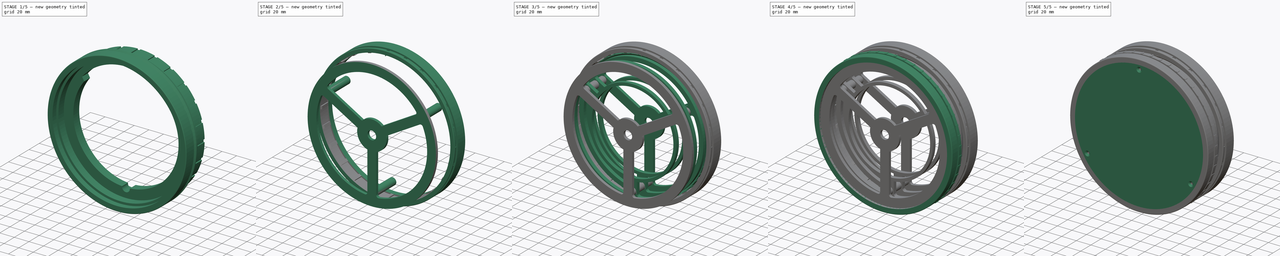
[diagram: build sequence overview — one tinted view per stage of 5, left to right]
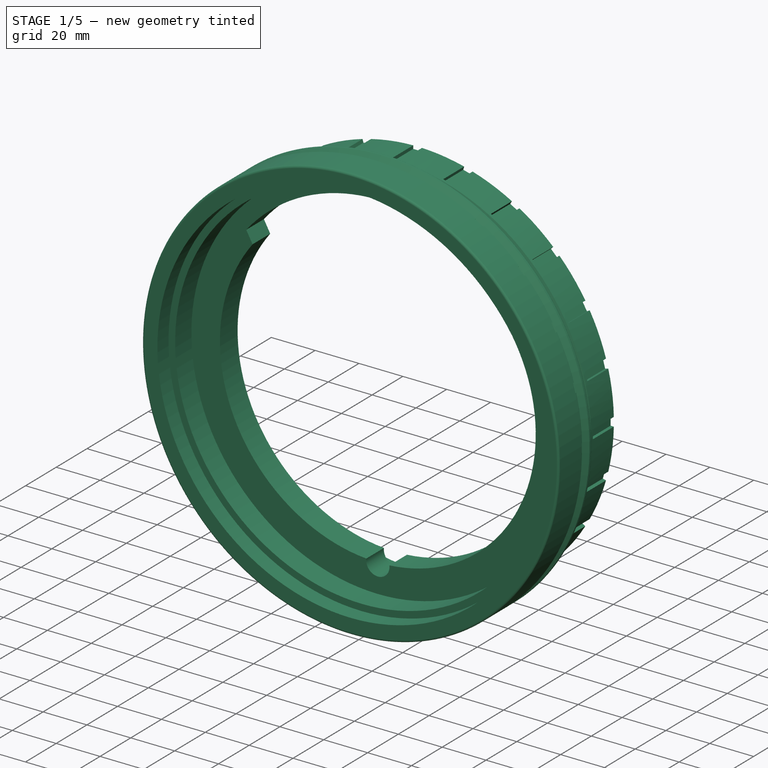
[diagram: stage 1 of 5 — iso view after this stage's code; geometry added in this stage tinted green]
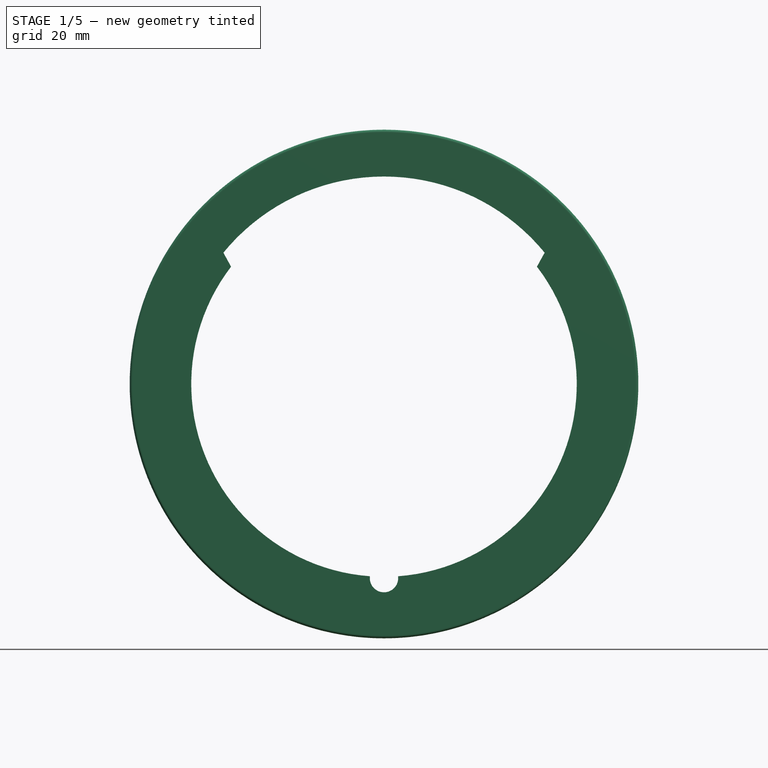
[diagram: stage 1 of 5 — front view after this stage's code; geometry added in this stage tinted green]
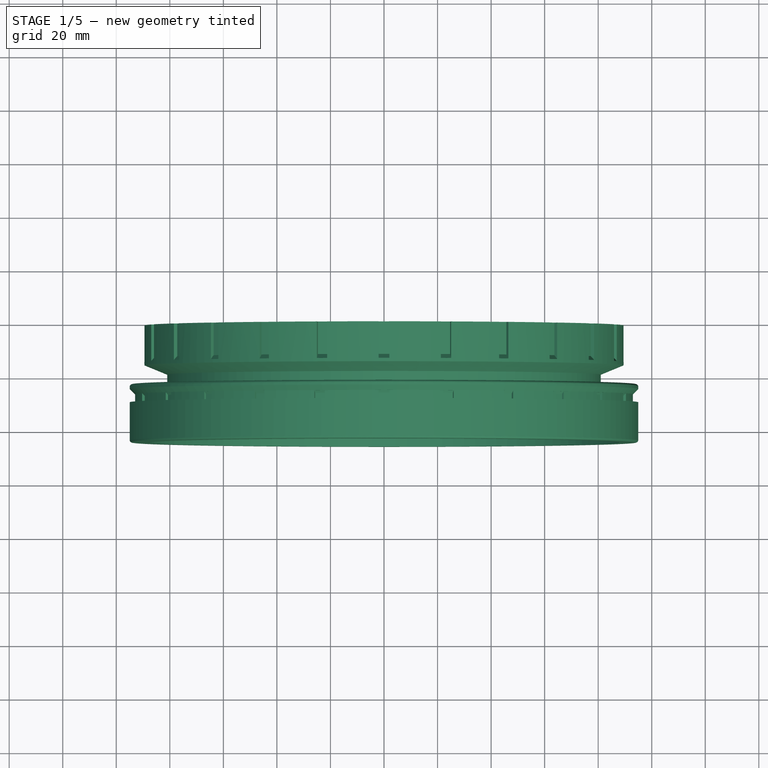
[diagram: stage 1 of 5 — top view after this stage's code; geometry added in this stage tinted green]
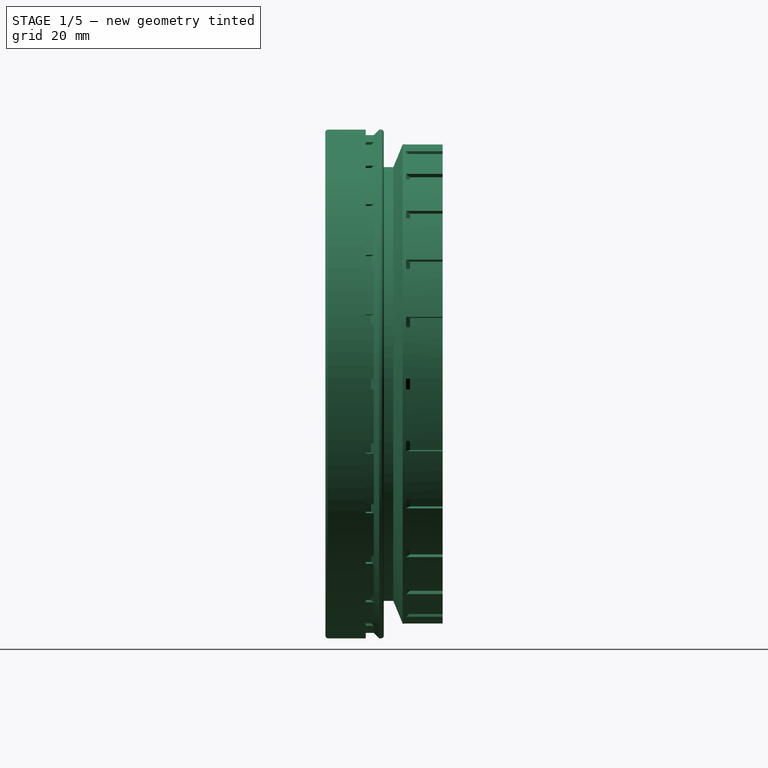
[diagram: stage 1 of 5 — right view after this stage's code; geometry added in this stage tinted green]
FCSTD DOCUMENT  (FreeCAD 0.20R28647 (Git))
Label: ello-wheel
License: All rights reserved
LicenseURL: http://en.wikipedia.org/wiki/All_rights_reserved
objects: Sketcher::SketchObject×19, PartDesign::Pad×9, PartDesign::PolarPattern×9, PartDesign::Body×9, PartDesign::Revolution×5, PartDesign::Pocket×5, PartDesign::Chamfer×2, Part::Cut×2, App::Link×1, Part::FeaturePython×1, PartDesign::LinearPattern×1, PartDesign::Mirrored×1, PartDesign::FeatureBase×1
note: 85 computed .brp shape members not serialized (recipe doc carries the construction recipe); baked Part::Feature solids carry a one-line shape summary decoded from their .brp
EXTERNAL_REF file=../../Stollen/stollen_n13.FCStd obj=Body

FEATURE [PartDesign::Body] Body002  label="Cover001"
  Group = -> [Sketch004,Pad004,Chamfer001]
  Origin = -> Origin002
  Tip = -> Chamfer001
FEATURE [App::Link] Link  label="StollenN13_link"
  LinkPlacement = pos=(0,30.9,-99) rot=(0.57735,-0.57735,-0.57735;2.0944rad)
  LinkedObject = -> <external ../../Stollen/stollen_n13.FCStd>#Body
  Placement = pos=(0,30.9,-99) rot=(0.57735,-0.57735,-0.57735;2.0944rad)
FEATURE [Sketcher::SketchObject] Sketch005  label="profil"
  FullyConstrained = true
  MapMode = 5
  Placement = pos=(0,0,0) rot=(0.57735,0.57735,0.57735;2.0944rad)
  Support = -> [YZ_Plane003]
  sketch-geometry (13):
    g0: LineSegment StartX=-18.25 StartY=-85 StartZ=0 EndX=-18.25 EndY=-89.5 EndZ=0
    g1: LineSegment StartX=-18.25 StartY=-89.5 StartZ=0 EndX=-7.15 EndY=-89.5 EndZ=0
    g2: LineSegment StartX=-7.15 StartY=-89.5 StartZ=0 EndX=-3.65 EndY=-81 EndZ=0
    g3: LineSegment StartX=-3.65 StartY=-81 StartZ=0 EndX=-0.15 EndY=-81 EndZ=0
    g4: LineSegment StartX=-0.15 StartY=-81 StartZ=0 EndX=3.35 EndY=-89.5 EndZ=0
    g5: LineSegment StartX=3.35 StartY=-89.5 StartZ=0 EndX=18.25 EndY=-89.5 EndZ=0
    g6: LineSegment StartX=18.25 StartY=-89.5 StartZ=0 EndX=18.25 EndY=-85 EndZ=0
    g7: LineSegment StartX=18.25 StartY=-85 StartZ=0 EndX=3.85 EndY=-85 EndZ=0
    g8: LineSegment StartX=3.85 StartY=-85 StartZ=0 EndX=3.85 EndY=-72 EndZ=0
    g9: LineSegment StartX=3.85 StartY=-72 StartZ=0 EndX=-7.65 EndY=-72 EndZ=0
    g10: LineSegment StartX=-7.65 StartY=-72 StartZ=0 EndX=-7.65 EndY=-85 EndZ=0
    g11: LineSegment StartX=-7.65 StartY=-85 StartZ=0 EndX=-18.25 EndY=-85 EndZ=0
    g12: LineSegment StartX=-1.9 StartY=-72 StartZ=0 EndX=-1.9 EndY=-81 EndZ=0
  constraints (38):
    c: Vertical(g0)
    c: Coincident(g0,g1)
    c: Horizontal(g1)
    c: Coincident(g1,g2)
    c: Coincident(g2,g3)
    c: Coincident(g3,g4)
    c: Coincident(g4,g5)
    c: Horizontal(g5)
    c: Coincident(g5,g6)
    c: Vertical(g6)
    c: Coincident(g6,g7)
    c: Horizontal(g7)
    c: Coincident(g7,g8)
    c: Coincident(g8,g9)
    c: Coincident(g9,g10)
    c: Vertical(g10)
    c: Coincident(g10,g11)
    c: Coincident(g11,g0)
    c: Horizontal(g11)
    c: Vertical(g8)
    c: DistanceX(g9,g9) = 11.5
    c: DistanceX(g1,g4) = 10.5
    c: DistanceY(g7) = -85
    c: DistanceY(g8,g8) = 13
    c: DistanceX(g3,g3) = 3.5
    c: DistanceY(g7,g3) = 4
    c: DistanceY(g5) = -89.5
    c: PointOnObject(g12,g9)
    c: PointOnObject(g12,g3)
    c: Symmetric(g9,g8,g12)
    c: Symmetric(g1,g4,g12)
    c: Symmetric(g2,g3,g12)
    c: DistanceX(g12) = -1.9
    c: DistanceX(g11,g11) = 10.6
    c: DistanceX(g7,g7) = 14.4
    c: Equal(g10,g8)
    c: Symmetric(g0,g5,g-2)
    c: DistanceX(g0,g5) = 36.5
FEATURE [PartDesign::Revolution] Revolution
  Angle = 360
  Axis = (3e-16,1,-2e-16)
  Base = (0,0,0)
  Placement = pos=(0,0,0) rot=(0.57735,0.57735,0.57735;2.0944rad)
  Profile = -> Sketch005
  ReferenceAxis = -> Sketch005 [H_Axis]
  Reversed = true
FEATURE [Sketcher::SketchObject] Sketch006
  FullyConstrained = true
  MapMode = 5
  Placement = pos=(0,0,0) rot=(0.57735,0.57735,0.57735;2.0944rad)
  Support = -> [YZ_Plane003]
  sketch-geometry (8):
    g0: LineSegment StartX=-20 StartY=101.9 StartZ=0 EndX=-20 EndY=88 EndZ=0
    g1: LineSegment StartX=-20 StartY=88 StartZ=0 EndX=-9.9 EndY=88 EndZ=0
    g2: LineSegment StartX=-9.9 StartY=88 StartZ=0 EndX=-1.9 EndY=96 EndZ=0
    g3: LineSegment StartX=-1.9 StartY=96 StartZ=0 EndX=6.1 EndY=88 EndZ=0
    g4: LineSegment StartX=6.1 StartY=88 StartZ=0 EndX=20 EndY=88 EndZ=0
    g5: LineSegment StartX=20 StartY=88 StartZ=0 EndX=20 EndY=101.9 EndZ=0
    g6: LineSegment StartX=20 StartY=101.9 StartZ=0 EndX=-20 EndY=101.9 EndZ=0
    g7: LineSegment StartX=-1.9 StartY=101.9 StartZ=0 EndX=-1.9 EndY=96 EndZ=0
  constraints (22):
    c: Coincident(g0,g1)
    c: Horizontal(g1)
    c: Coincident(g1,g2)
    c: Coincident(g2,g3)
    c: Coincident(g3,g4)
    c: Horizontal(g4)
    c: Coincident(g4,g5)
    c: Vertical(g5)
    c: Coincident(g5,g6)
    c: Coincident(g6,g0)
    c: Vertical(g0)
    c: DistanceX(g6,g6) = 40
    c: DistanceY(g4) = 88
    c: DistanceX(g1,g3) = 16
    c: Perpendicular(g3,g2)
    c: Equal(g4,g5)
    c: Symmetric(g0,g5,g-2)
    c: PointOnObject(g7,g6)
    c: Coincident(g7,g2)
    c: Vertical(g7)
    c: Symmetric(g1,g3,g7)
    c: DistanceX(g2) = -1.9
FEATURE [PartDesign::Pocket] Pocket  label="tooth"
  BaseFeature = -> Revolution
  Direction = (-1,2e-16,-3e-16)
  Length = 4
  Length2 = 5
  Midplane = true
  Placement = pos=(0,0,0) rot=(0.57735,0.57735,0.57735;2.0944rad)
  Profile = -> Sketch006
  ReferenceAxis = -> Sketch006 [N_Axis]
  Type = 0
FEATURE [PartDesign::PolarPattern] PolarPattern001  label="inner-teeth"
  Angle = 360
  Axis = -> Y_Axis003
  BaseFeature = -> Pocket
  Occurrences = 24
  Originals = -> [Pocket]
  Overlap = 0
  Placement = pos=(0,0,0) rot=(0.57735,0.57735,0.57735;2.0944rad)
FEATURE [Sketcher::SketchObject] Sketch007
  FullyConstrained = true
  MapMode = 5
  Placement = pos=(0,0,0) rot=(1,0,0;1.5708rad)
  Support = -> [XZ_Plane003]
  sketch-geometry (4):
    g0: Circle CenterX=0 CenterY=-72.5 CenterZ=0 NormalX=0 NormalY=0 NormalZ=1 AngleXU=0 Radius=5.3
    g1: ArcOfCircle CenterX=0 CenterY=0 CenterZ=0 NormalX=0 NormalY=0 NormalZ=1 AngleXU=0 Radius=77.5 StartAngle=0.685356 EndAngle=2.45624
    g2: LineSegment StartX=-60 StartY=49.0535 StartZ=0 EndX=0 EndY=-60 EndZ=0
    g3: LineSegment StartX=0 StartY=-60 StartZ=0 EndX=60 EndY=49.0535 EndZ=0
  constraints (12):
    c: PointOnObject(g0,g-2)
    c: Diameter(g0) = 10.6
    c: DistanceY(g0) = -72.5
    c: Coincident(g1,g-1)
    c: Coincident(g2,g3)
    c: Coincident(g3,g1)
    c: DistanceY(g2) = -60
    c: Diameter(g1) = 155
    c: Symmetric(g1,g1,g-2)
    c: Coincident(g1,g2)
    c: DistanceX(g1,g1) = 120
    c: Equal(g2,g3)
FEATURE [PartDesign::Pocket] Pocket001  label="inner-cut-out"
  BaseFeature = -> PolarPattern001
  Direction = (0,1,2e-16)
  Length = 5
  Length2 = 5
  Midplane = true
  Placement = pos=(0,0,0) rot=(0.57735,0.57735,0.57735;2.0944rad)
  Profile = -> Sketch007
  ReferenceAxis = -> Sketch007 [N_Axis]
  Type = 1
FEATURE [Sketcher::SketchObject] Sketch017
  FullyConstrained = true
  MapMode = 5
  Placement = pos=(0,0,0) rot=(0.57735,0.57735,0.57735;2.0944rad)
  Support = -> [YZ_Plane004]
  sketch-geometry (12):
    g0: LineSegment StartX=-25.5 StartY=-88 StartZ=0 EndX=-25.5 EndY=-94 EndZ=0
    g1: LineSegment StartX=-24.5 StartY=-95 StartZ=0 EndX=-10.45 EndY=-95 EndZ=0
    g2: LineSegment StartX=-10.45 StartY=-95 StartZ=0 EndX=-10.45 EndY=-93 EndZ=0
    g3: LineSegment StartX=-10.45 StartY=-93 StartZ=0 EndX=-7.45 EndY=-93 EndZ=0
    g4: LineSegment StartX=-5.45 StartY=-95 StartZ=0 EndX=-4.7 EndY=-95 EndZ=0
    g5: LineSegment StartX=-3.7 StartY=-94 StartZ=0 EndX=-3.7 EndY=-88 EndZ=0
    g6: LineSegment StartX=-3.7 StartY=-88 StartZ=0 EndX=-25.5 EndY=-88 EndZ=0
    g7: ArcOfCircle CenterX=-4.7 CenterY=-94 CenterZ=0 NormalX=0 NormalY=0 NormalZ=1 AngleXU=0 Radius=1 StartAngle=4.71239 EndAngle=6.28319
    g8: GeomPoint X=-3.7 Y=-95 Z=0
    g9: ArcOfCircle CenterX=-24.5 CenterY=-94 CenterZ=0 NormalX=0 NormalY=0 NormalZ=1 AngleXU=0 Radius=1 StartAngle=3.14159 EndAngle=4.71239
    g10: GeomPoint X=-25.5 Y=-95 Z=0
    g11: LineSegment StartX=-5.45 StartY=-95 StartZ=0 EndX=-7.45 EndY=-93 EndZ=0
  constraints (32):
    c: Vertical(g0)
    c: Horizontal(g1)
    c: Coincident(g1,g2)
    c: Coincident(g2,g3)
    c: Horizontal(g4)
    c: Vertical(g5)
    c: Coincident(g5,g6)
    c: Coincident(g6,g0)
    c: Horizontal(g6)
    c: PointOnObject(g8,g4)
    c: PointOnObject(g8,g5)
    c: Tangent(g4,g7) = -1.5708
    c: Tangent(g5,g7) = -1.5708
    c: Diameter(g7) = 2
    c: DistanceX(g5) = -3.7  'CenterDistance'
    c: DistanceY(g5) = -88
    c: Horizontal(g3)
    c: DistanceX(g3,g3) = 3
    c: DistanceY(g8) = -95
    c: PointOnObject(g10,g0)
    c: PointOnObject(g10,g1)
    c: Tangent(g0,g9) = -1.5708
    c: Tangent(g1,g9) = -1.5708
    c: Equal(g9,g7)
    c: Horizontal(g4,g1)
    c: Coincident(g11,g4)
    c: Coincident(g3,g11)
    c: Angle(g11) = 2.35619
    c: Vertical(g2)
    c: DistanceX(g3,g4) = 2
    c: DistanceX(g4,g5) = 1.75
    c: DistanceX(g6,g6) = 21.8
FEATURE [PartDesign::Revolution] Revolution004
  Angle = 360
  Axis = (1e-16,1,-1e-16)
  Base = (0,0,0)
  Placement = pos=(0,0,0) rot=(0.57735,0.57735,0.57735;2.0944rad)
  Profile = -> Sketch017
  ReferenceAxis = -> Y_Axis004
  Reversed = true
FEATURE [Sketcher::SketchObject] Sketch018
  FullyConstrained = true
  MapMode = 5
  Placement = pos=(0,0,0) rot=(0.57735,0.57735,0.57735;2.0944rad)
  Support = -> [YZ_Plane004]
  expr: Constraints[13] = -3.76mm + <<Sketch017>>.Constraints.CenterDistance
  sketch-geometry (5):
    g0: LineSegment StartX=-10.44 StartY=-95 StartZ=0 EndX=-10.44 EndY=-92 EndZ=0
    g1: LineSegment StartX=-10.44 StartY=-92 StartZ=0 EndX=-8.46 EndY=-92 EndZ=0
    g2: LineSegment StartX=-8.46 StartY=-92 StartZ=0 EndX=-7.46 EndY=-93 EndZ=0
    g3: LineSegment StartX=-7.46 StartY=-93 StartZ=0 EndX=-7.46 EndY=-95 EndZ=0
    g4: LineSegment StartX=-7.46 StartY=-95 StartZ=0 EndX=-10.44 EndY=-95 EndZ=0
  constraints (15):
    c: Vertical(g0)
    c: Coincident(g0,g1)
    c: Horizontal(g1)
    c: Coincident(g1,g2)
    c: Coincident(g2,g3)
    c: Vertical(g3)
    c: Coincident(g3,g4)
    c: Coincident(g4,g0)
    c: Horizontal(g4)
    c: DistanceX(g4,g4) = 2.98
    c: DistanceY(g0,g0) = 3
    c: DistanceY(g3,g3) = 2
    c: Angle(g2) = -0.785398
    c: DistanceX(g3) = -7.46
    c: DistanceY(g3) = -95
FEATURE [PartDesign::Pocket] Pocket004
  BaseFeature = -> Revolution004
  Direction = (-1,2e-16,-3e-16)
  Length = 4
  Length2 = 5
  Midplane = true
  Placement = pos=(0,0,0) rot=(0.57735,0.57735,0.57735;2.0944rad)
  Profile = -> Sketch018
  ReferenceAxis = -> Sketch018 [N_Axis]
  Type = 0
FEATURE [PartDesign::PolarPattern] PolarPattern008
  Angle = 360
  Axis = -> Y_Axis004
  BaseFeature = -> Pocket004
  Occurrences = 24
  Originals = -> [Pocket004]
  Overlap = 0
  Placement = pos=(0,0,0) rot=(0.57735,0.57735,0.57735;2.0944rad)
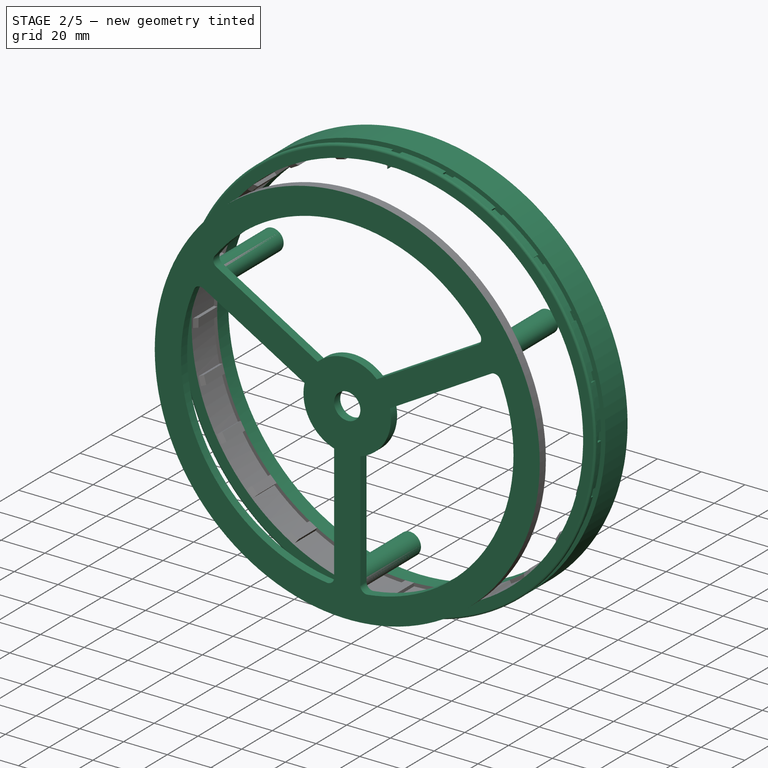
[diagram: stage 2 of 5 — iso view after this stage's code; geometry added in this stage tinted green]
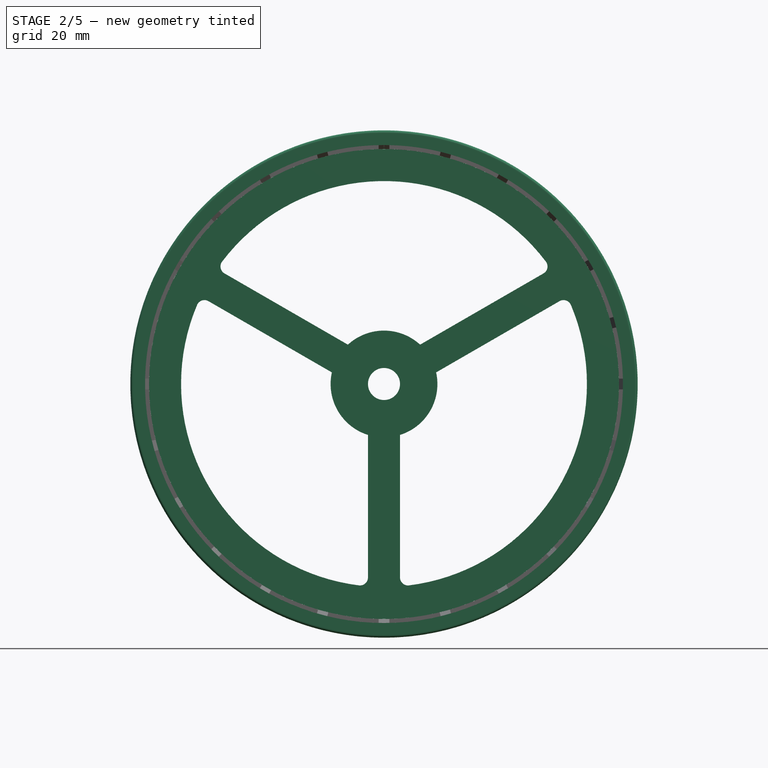
[diagram: stage 2 of 5 — front view after this stage's code; geometry added in this stage tinted green]
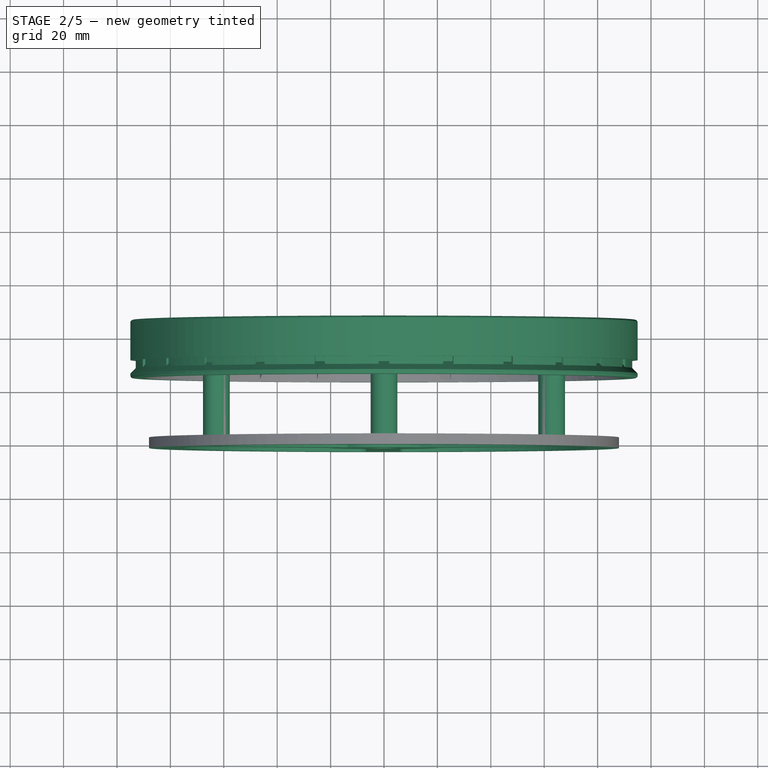
[diagram: stage 2 of 5 — top view after this stage's code; geometry added in this stage tinted green]
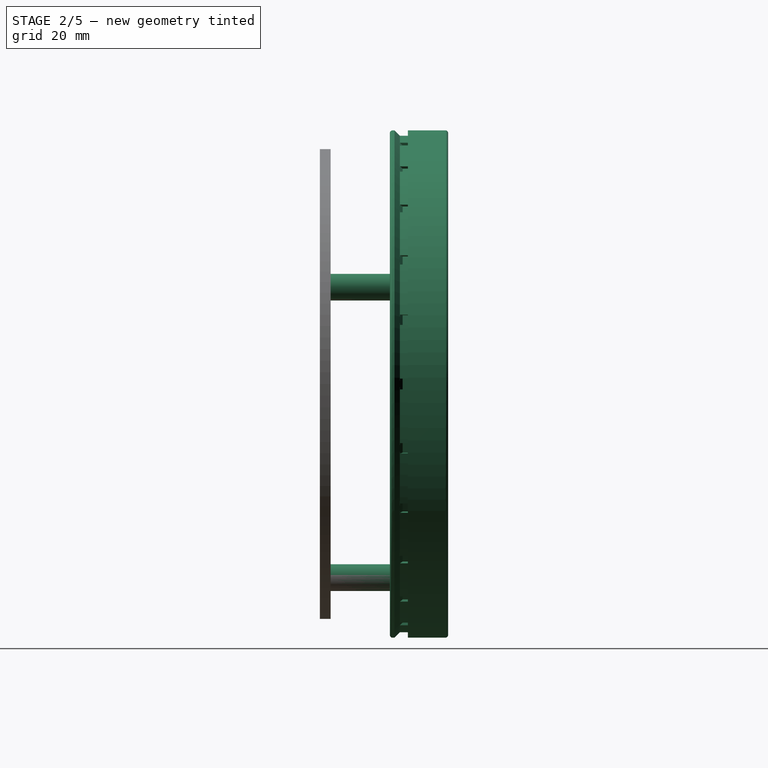
[diagram: stage 2 of 5 — right view after this stage's code; geometry added in this stage tinted green]
FEATURE [Sketcher::SketchObject] Sketch
  AttachmentOffset = pos=(0,0,18.5) rot=(0,0,1;0rad)
  FullyConstrained = true
  MapMode = 5
  Placement = pos=(0,-18.5,-4.1e-15) rot=(1,0,0;1.5708rad)
  Support = -> [XZ_Plane]
  sketch-geometry (31):
    g0: Circle CenterX=0 CenterY=0 CenterZ=0 NormalX=0 NormalY=0 NormalZ=1 AngleXU=0 Radius=88
    g1: ArcOfCircle CenterX=0 CenterY=0 CenterZ=0 NormalX=0 NormalY=0 NormalZ=1 AngleXU=0 Radius=76 StartAngle=4.83599 EndAngle=6.68318
    g2: ArcOfCircle CenterX=0 CenterY=0 CenterZ=0 NormalX=0 NormalY=0 NormalZ=1 AngleXU=0 Radius=20 StartAngle=5.01708 EndAngle=6.50209
    g3: LineSegment StartX=-6 StartY=-19.0788 StartZ=0 EndX=-6 EndY=-72.4431 EndZ=0
    g4: LineSegment StartX=6 StartY=-19.0788 StartZ=0 EndX=6 EndY=-72.4431 EndZ=0
    g5: LineSegment StartX=19.5227 StartY=4.34324 StartZ=0 EndX=65.7375 EndY=31.0254 EndZ=0
    g6: LineSegment StartX=13.5227 StartY=14.7355 StartZ=0 EndX=59.7375 EndY=41.4177 EndZ=0
    g7: LineSegment StartX=-13.5227 StartY=14.7355 StartZ=0 EndX=-59.7375 EndY=41.4177 EndZ=0
    g8: LineSegment StartX=-65.7375 StartY=31.0254 StartZ=0 EndX=-19.5227 EndY=4.34324 EndZ=0
    g9: ArcOfCircle CenterX=0 CenterY=0 CenterZ=0 NormalX=0 NormalY=0 NormalZ=1 AngleXU=0 Radius=20 StartAngle=2.92269 EndAngle=4.4077
    g10: ArcOfCircle CenterX=0 CenterY=0 CenterZ=0 NormalX=0 NormalY=0 NormalZ=1 AngleXU=0 Radius=76 StartAngle=2.7416 EndAngle=4.58879
    g11: ArcOfCircle CenterX=0 CenterY=0 CenterZ=0 NormalX=0 NormalY=0 NormalZ=1 AngleXU=0 Radius=76 StartAngle=0.647201 EndAngle=2.49439
    g12: ArcOfCircle CenterX=0 CenterY=0 CenterZ=0 NormalX=0 NormalY=0 NormalZ=1 AngleXU=0 Radius=20 StartAngle=0.828291 EndAngle=2.3133
    g13: LineSegment StartX=0 StartY=0 StartZ=0 EndX=76.2102 EndY=44 EndZ=0
    g14: LineSegment StartX=0 StartY=0 StartZ=0 EndX=-76.2102 EndY=44 EndZ=0
    g15: LineSegment StartX=-6 StartY=-75.7628 StartZ=0 EndX=6 EndY=-75.7628 EndZ=0
    g16: LineSegment StartX=-68.6125 StartY=32.6852 StartZ=0 EndX=-62.6125 EndY=43.0775 EndZ=0
    g17: LineSegment StartX=62.6125 StartY=43.0775 StartZ=0 EndX=68.6125 EndY=32.6852 EndZ=0
    g18: Circle CenterX=0 CenterY=0 CenterZ=0 NormalX=0 NormalY=0 NormalZ=1 AngleXU=0 Radius=6
    g19: ArcOfCircle CenterX=58.2375 CenterY=44.0158 CenterZ=0 NormalX=0 NormalY=0 NormalZ=1 AngleXU=0 Radius=3 StartAngle=5.23599 EndAngle=6.93039
    g20: GeomPoint X=62.6125 Y=43.0775 Z=0
    g21: ArcOfCircle CenterX=67.2375 CenterY=28.4273 CenterZ=0 NormalX=0 NormalY=0 NormalZ=1 AngleXU=0 Radius=3 StartAngle=0.399997 EndAngle=2.0944
    g22: GeomPoint X=68.6125 Y=32.6852 Z=0
    g23: ArcOfCircle CenterX=9 CenterY=-72.4431 CenterZ=0 NormalX=0 NormalY=0 NormalZ=1 AngleXU=0 Radius=3 StartAngle=3.14159 EndAngle=4.83599
    g24: GeomPoint X=6 Y=-75.7628 Z=0
    g25: ArcOfCircle CenterX=-9 CenterY=-72.4431 CenterZ=0 NormalX=0 NormalY=0 NormalZ=1 AngleXU=0 Radius=3 StartAngle=4.58879 EndAngle=6.28319
    g26: GeomPoint X=-6 Y=-75.7628 Z=0
    g27: ArcOfCircle CenterX=-67.2375 CenterY=28.4273 CenterZ=0 NormalX=0 NormalY=0 NormalZ=1 AngleXU=0 Radius=3 StartAngle=1.0472 EndAngle=2.7416
    g28: GeomPoint X=-68.6125 Y=32.6852 Z=0
    g29: ArcOfCircle CenterX=-58.2375 CenterY=44.0158 CenterZ=0 NormalX=0 NormalY=0 NormalZ=1 AngleXU=0 Radius=3 StartAngle=2.49439 EndAngle=4.18879
    g30: GeomPoint X=-62.6125 Y=43.0775 Z=0
  constraints (73):
    c: Coincident(g0,g-1)
    c: Coincident(g1,g0)
    c: Coincident(g2,g0)
    c: Vertical(g3)
    c: Vertical(g4)
    c: Symmetric(g24,g26,g-2)
    c: Coincident(g9,g3)
    c: Coincident(g2,g4)
    c: Equal(g2,g9)
    c: Coincident(g12,g7)
    c: Coincident(g9,g8)
    c: Coincident(g2,g9)
    c: Coincident(g1,g10)
    c: Coincident(g1,g11)
    c: Equal(g2,g12)
    c: Coincident(g2,g5)
    c: Coincident(g12,g6)
    c: Coincident(g2,g12)
    c: Coincident(g13,g0)
    c: PointOnObject(g13,g0)
    c: Coincident(g14,g0)
    c: PointOnObject(g14,g0)
    c: Angle(g13) = 0.523599
    c: Angle(g14) = 2.61799
    c: Parallel(g8,g7)
    c: Symmetric(g30,g28,g14)
    c: Parallel(g14,g7)
    c: Parallel(g6,g13)
    c: Parallel(g13,g5)
    c: Equal(g15,g17)
    c: Equal(g17,g16)
    c: Diameter(g0) = 176
    c: Diameter(g1) = 152
    c: DistanceX(g15,g15) = 12
    c: Diameter(g2) = 40
    c: Coincident(g18,g0)
    c: Diameter(g18) = 12
    c: Symmetric(g22,g20,g13)
    c: PointOnObject(g20,g6)
    c: Tangent(g6,g19) = -1.5708
    c: PointOnObject(g22,g5)
    c: Tangent(g5,g21) = 1.5708
    c: PointOnObject(g24,g4)
    c: Tangent(g4,g23) = -1.5708
    c: PointOnObject(g26,g3)
    c: Tangent(g3,g25) = 1.5708
    c: PointOnObject(g28,g8)
    c: Tangent(g8,g27) = 1.5708
    c: PointOnObject(g30,g7)
    c: Tangent(g7,g29) = 1.5708
    c: Equal(g29,g27)
    c: Equal(g27,g25)
    c: Equal(g25,g23)
    c: Equal(g23,g21)
    c: Equal(g21,g19)
    c: Radius(g19) = 3
    c: Coincident(g17,g22)
    c: Coincident(g20,g17)
    c: PointOnObject(g17,g1)
    c: Tangent(g19,g11) = -1.5708
    c: Tangent(g21,g1) = -1.5708
    c: PointOnObject(g17,g11)
    c: Tangent(g29,g11) = -1.5708
    c: PointOnObject(g30,g11)
    c: Coincident(g16,g30)
    c: Tangent(g10,g27) = -1.5708
    c: PointOnObject(g28,g10)
    c: Coincident(g16,g28)
    c: Tangent(g25,g10) = -1.5708
    c: PointOnObject(g26,g10)
    c: Coincident(g15,g26)
    c: Coincident(g24,g15)
    c: Tangent(g23,g1) = -1.5708
FEATURE [PartDesign::Pad] Pad  label="outer"
  Direction = (0,-1,-2e-16)
  Length = 4
  Length2 = 10
  Placement = pos=(0,0,0) rot=(1,0,0;1.5708rad)
  Profile = -> Sketch
  ReferenceAxis = -> Sketch [N_Axis]
  Type = 0
FEATURE [Sketcher::SketchObject] Sketch001
  AttachmentOffset = pos=(0,0,8) rot=(0,0,1;0rad)
  FullyConstrained = true
  MapMode = 5
  Placement = pos=(0,-8,-1.8e-15) rot=(1,0,0;1.5708rad)
  Support = -> [XZ_Plane]
  sketch-geometry (25):
    g0: Circle CenterX=0 CenterY=0 CenterZ=0 NormalX=0 NormalY=0 NormalZ=1 AngleXU=0 Radius=85
    g1: ArcOfCircle CenterX=0 CenterY=0 CenterZ=0 NormalX=0 NormalY=0 NormalZ=1 AngleXU=0 Radius=79 StartAngle=4.83109 EndAngle=6.68808
    g2: ArcOfCircle CenterX=0 CenterY=0 CenterZ=0 NormalX=0 NormalY=0 NormalZ=1 AngleXU=0 Radius=60 StartAngle=4.81256 EndAngle=6.70662
    g3: LineSegment StartX=-6 StartY=-59.6992 StartZ=0 EndX=-6 EndY=-75.4652 EndZ=0
    g4: LineSegment StartX=6 StartY=-59.6992 StartZ=0 EndX=6 EndY=-75.4652 EndZ=0
    g5: LineSegment StartX=54.7011 StartY=24.6535 StartZ=0 EndX=68.3548 EndY=32.5365 EndZ=0
    g6: LineSegment StartX=48.7011 StartY=35.0458 StartZ=0 EndX=62.3548 EndY=42.9288 EndZ=0
    g7: LineSegment StartX=-48.7011 StartY=35.0458 StartZ=0 EndX=-62.3548 EndY=42.9288 EndZ=0
    g8: LineSegment StartX=-68.3548 StartY=32.5365 StartZ=0 EndX=-54.7011 EndY=24.6535 EndZ=0
    g9: ArcOfCircle CenterX=0 CenterY=0 CenterZ=0 NormalX=0 NormalY=0 NormalZ=1 AngleXU=0 Radius=60 StartAngle=2.71816 EndAngle=4.61222
    g10: ArcOfCircle CenterX=0 CenterY=0 CenterZ=0 NormalX=0 NormalY=0 NormalZ=1 AngleXU=0 Radius=79 StartAngle=2.73669 EndAngle=4.59369
    g11: ArcOfCircle CenterX=0 CenterY=0 CenterZ=0 NormalX=0 NormalY=0 NormalZ=1 AngleXU=0 Radius=79 StartAngle=0.642298 EndAngle=2.49929
    g12: ArcOfCircle CenterX=0 CenterY=0 CenterZ=0 NormalX=0 NormalY=0 NormalZ=1 AngleXU=0 Radius=60 StartAngle=0.623766 EndAngle=2.51783
    g13: LineSegment StartX=0 StartY=0 StartZ=0 EndX=73.6122 EndY=42.5 EndZ=0
    g14: LineSegment StartX=0 StartY=0 StartZ=0 EndX=-73.6122 EndY=42.5 EndZ=0
    g15: LineSegment StartX=-6 StartY=-78.7718 StartZ=0 EndX=6 EndY=-78.7718 EndZ=0
    g16: LineSegment StartX=-71.2184 StartY=34.1898 StartZ=0 EndX=-65.2184 EndY=44.5821 EndZ=0
    g17: LineSegment StartX=65.2184 StartY=44.5821 StartZ=0 EndX=71.2184 EndY=34.1898 EndZ=0
    g18: Circle CenterX=0 CenterY=0 CenterZ=0 NormalX=0 NormalY=0 NormalZ=1 AngleXU=0 Radius=56
    g19: ArcOfCircle CenterX=69.8548 CenterY=29.9384 CenterZ=0 NormalX=0 NormalY=0 NormalZ=1 AngleXU=0 Radius=3 StartAngle=0.404899 EndAngle=2.0944
    g20: ArcOfCircle CenterX=60.8548 CenterY=45.5268 CenterZ=0 NormalX=0 NormalY=0 NormalZ=1 AngleXU=0 Radius=3 StartAngle=5.23599 EndAngle=6.92548
    g21: ArcOfCircle CenterX=-69.8548 CenterY=29.9384 CenterZ=0 NormalX=0 NormalY=0 NormalZ=1 AngleXU=0 Radius=3 StartAngle=1.0472 EndAngle=2.73669
    g22: ArcOfCircle CenterX=-60.8548 CenterY=45.5268 CenterZ=0 NormalX=0 NormalY=0 NormalZ=1 AngleXU=0 Radius=3 StartAngle=2.49929 EndAngle=4.18879
    g23: ArcOfCircle CenterX=-9 CenterY=-75.4652 CenterZ=0 NormalX=0 NormalY=0 NormalZ=1 AngleXU=0 Radius=3 StartAngle=4.59369 EndAngle=6.28319
    g24: ArcOfCircle CenterX=9 CenterY=-75.4652 CenterZ=0 NormalX=0 NormalY=0 NormalZ=1 AngleXU=0 Radius=3 StartAngle=3.14159 EndAngle=4.83109
  constraints (67):
    c: Coincident(g0,g-1)
    c: Coincident(g1,g0)
    c: Coincident(g2,g0)
    c: Vertical(g3)
    c: Vertical(g4)
    c: Symmetric(g4,g3,g-2)
    c: Coincident(g9,g3)
    c: Coincident(g2,g4)
    c: Equal(g2,g9)
    c: Coincident(g12,g7)
    c: Coincident(g9,g8)
    c: Coincident(g2,g9)
    c: Coincident(g1,g10)
    c: Coincident(g1,g11)
    c: Equal(g2,g12)
    c: Coincident(g2,g5)
    c: Coincident(g12,g6)
    c: Coincident(g2,g12)
    c: Coincident(g13,g0)
    c: PointOnObject(g13,g0)
    c: Coincident(g14,g0)
    c: PointOnObject(g14,g0)
    c: Angle(g13) = 0.523599
    c: Angle(g14) = 2.61799
    c: Parallel(g8,g7)
    c: Symmetric(g7,g8,g14)
    c: Parallel(g14,g7)
    c: Parallel(g6,g13)
    c: Parallel(g13,g5)
    c: Equal(g15,g17)
    c: Equal(g17,g16)
    c: Diameter(g0) = 170
    c: Diameter(g1) = 158
    c: DistanceX(g15,g15) = 12
    c: Diameter(g2) = 120
    c: Coincident(g18,g0)
    c: Diameter(g18) = 112
    c: Symmetric(g17,g17,g13)
    c: Tangent(g20,g11) = -1.5708
    c: Tangent(g20,g6) = -1.5708
    c: Tangent(g19,g5) = 1.5708
    c: Tangent(g19,g1) = -1.5708
    c: PointOnObject(g17,g5)
    c: PointOnObject(g17,g1)
    c: PointOnObject(g17,g6)
    c: Radius(g19) = 3
    c: Equal(g19,g20)
    c: Tangent(g22,g11) = -1.5708
    c: Tangent(g22,g7) = 1.5708
    c: Tangent(g21,g8) = 1.5708
    c: Tangent(g21,g10) = -1.5708
    c: Equal(g21,g22)
    c: Equal(g22,g20)
    c: PointOnObject(g16,g7)
    c: PointOnObject(g16,g11)
    c: PointOnObject(g16,g10)
    c: PointOnObject(g16,g8)
    c: Tangent(g24,g1) = -1.5708
    c: Tangent(g24,g4) = -1.5708
    c: Tangent(g23,g3) = 1.5708
    c: Tangent(g23,g10) = -1.5708
    c: PointOnObject(g15,g10)
    c: PointOnObject(g15,g3)
    c: PointOnObject(g15,g1)
    c: PointOnObject(g15,g4)
    c: Equal(g23,g24)
    c: Equal(g24,g19)
FEATURE [Sketcher::SketchObject] Sketch002
  FullyConstrained = true
  MapMode = 5
  Placement = pos=(0,0,0) rot=(1,0,0;1.5708rad)
  Support = -> [XZ_Plane]
  sketch-geometry (1):
    g0: Circle CenterX=0 CenterY=-72.5 CenterZ=0 NormalX=0 NormalY=0 NormalZ=1 AngleXU=0 Radius=5
  constraints (3):
    c: PointOnObject(g0,g-2)
    c: Diameter(g0) = 10
    c: DistanceY(g0) = -72.5
FEATURE [PartDesign::Pad] Pad001  label="bolt"
  BaseFeature = -> Pad
  Direction = (0,-1,-2e-16)
  Length = 37
  Length2 = 10
  Midplane = true
  Placement = pos=(0,0,0) rot=(1,0,0;1.5708rad)
  Profile = -> Sketch002
  ReferenceAxis = -> Sketch002 [N_Axis]
  Type = 0
FEATURE [PartDesign::PolarPattern] PolarPattern  label="bolts"
  Angle = 360
  Axis = -> Sketch002 [N_Axis]
  BaseFeature = -> Pad001
  Occurrences = 3
  Originals = -> [Pad001]
  Overlap = 0
  Placement = pos=(0,0,0) rot=(1,0,0;1.5708rad)
FEATURE [PartDesign::PolarPattern] PolarPattern002  label="inner-cut-outs"
  Angle = 360
  Axis = -> Sketch007 [N_Axis]
  BaseFeature = -> Pocket001
  Occurrences = 3
  Originals = -> [Pocket001]
  Overlap = 0
  Placement = pos=(0,0,0) rot=(0.57735,0.57735,0.57735;2.0944rad)
FEATURE [Sketcher::SketchObject] Sketch008
  FullyConstrained = true
  MapMode = 5
  Placement = pos=(0,0,0) rot=(1,0,0;1.5708rad)
  Support = -> [XZ_Plane003]
  sketch-geometry (4):
    g0: LineSegment StartX=-0.05 StartY=100 StartZ=0 EndX=0.05 EndY=100 EndZ=0
    g1: LineSegment StartX=0.05 StartY=100 StartZ=0 EndX=0.05 EndY=0 EndZ=0
    g2: LineSegment StartX=0.05 StartY=0 StartZ=0 EndX=-0.05 EndY=0 EndZ=0
    g3: LineSegment StartX=-0.05 StartY=0 StartZ=0 EndX=-0.05 EndY=100 EndZ=0
  constraints (11):
    c: Coincident(g0,g1)
    c: Coincident(g1,g2)
    c: Coincident(g2,g3)
    c: Coincident(g3,g0)
    c: Horizontal(g2)
    c: Vertical(g1)
    c: Vertical(g3)
    c: PointOnObject(g1,g-1)
    c: DistanceY(g1,g1) = 100
    c: Symmetric(g0,g0,g-2)
    c: DistanceX(g0,g0) = 0.1
FEATURE [PartDesign::Pocket] Pocket002
  BaseFeature = -> PolarPattern002
  Direction = (0,1,2e-16)
  Length = 5
  Length2 = 5
  Midplane = true
  Placement = pos=(0,0,0) rot=(0.57735,0.57735,0.57735;2.0944rad)
  Profile = -> Sketch008
  ReferenceAxis = -> Sketch008 [N_Axis]
  Type = 1
FEATURE [PartDesign::Body] Body  label="Frame"
  Group = -> [Sketch,Pad,Sketch002,Pad001,PolarPattern,Sketch001,Pad002,LinearPattern,Mirrored]
  Origin = -> Origin
  Tip = -> Mirrored
FEATURE [PartDesign::FeatureBase] Clone
  BaseFeature = -> Body003
FEATURE [PartDesign::Body] Body008  label="Rim001"
  Group = -> [Sketch017,Revolution004,Sketch018,Pocket004,PolarPattern008]
  Origin = -> Origin008
  Placement = pos=(0,0,0) rot=(1,0,0;3.14159rad)
  Tip = -> PolarPattern008
FEATURE [Part::Cut] Cut001  label="Outer_Rim_Wide"
  Base = -> Body008
  Tool = -> Body005
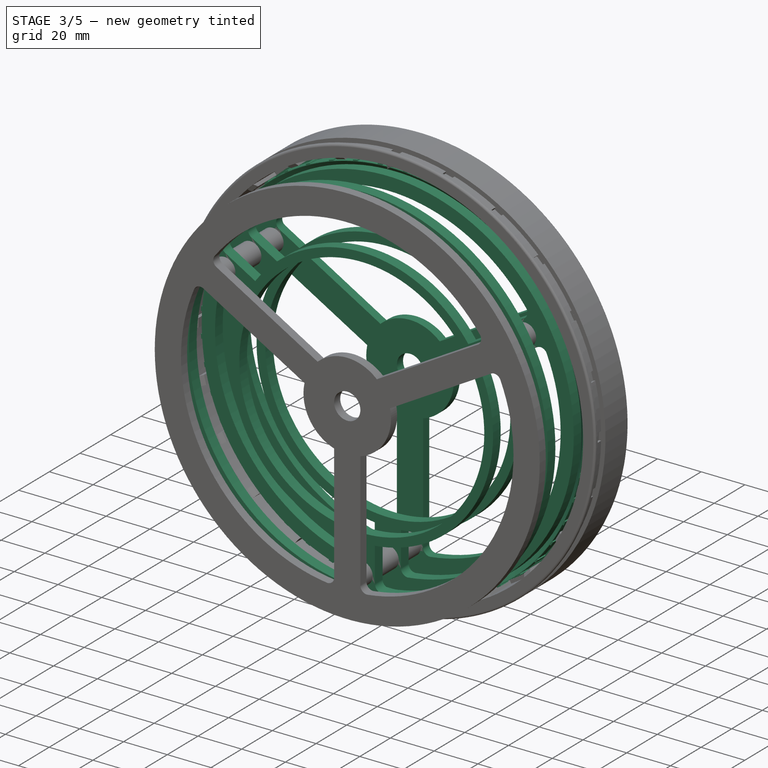
[diagram: stage 3 of 5 — iso view after this stage's code; geometry added in this stage tinted green]
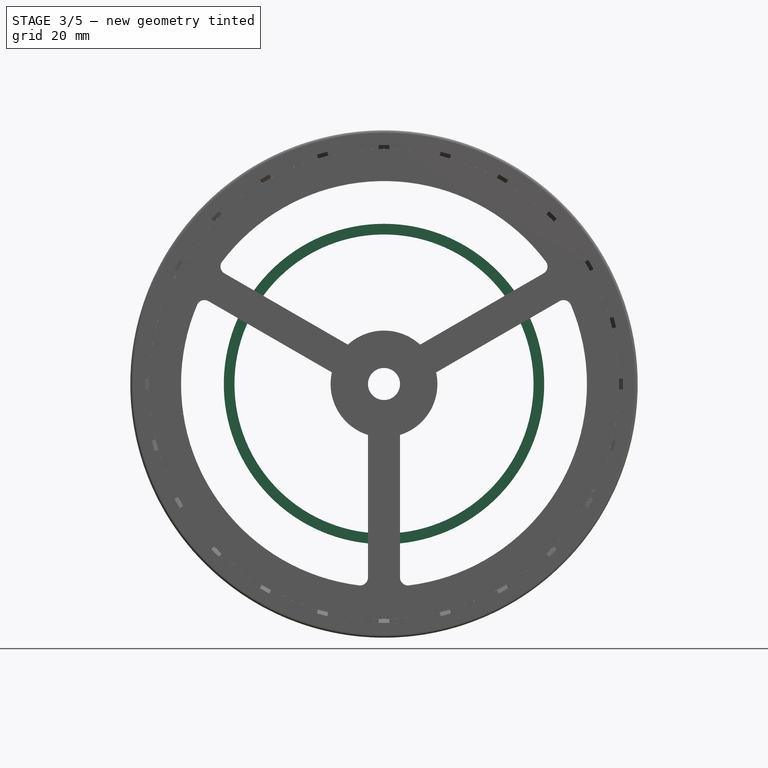
[diagram: stage 3 of 5 — front view after this stage's code; geometry added in this stage tinted green]
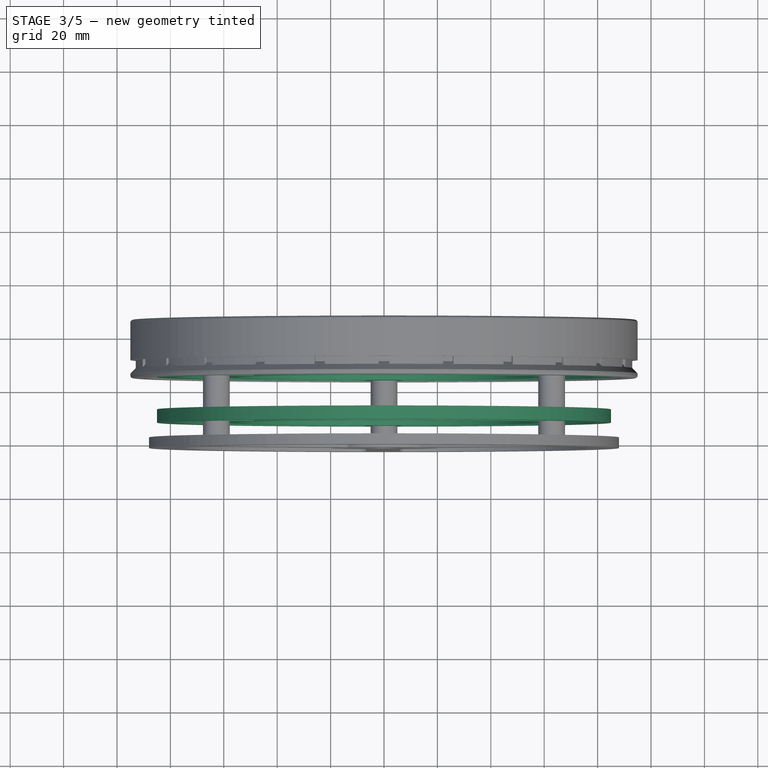
[diagram: stage 3 of 5 — top view after this stage's code; geometry added in this stage tinted green]
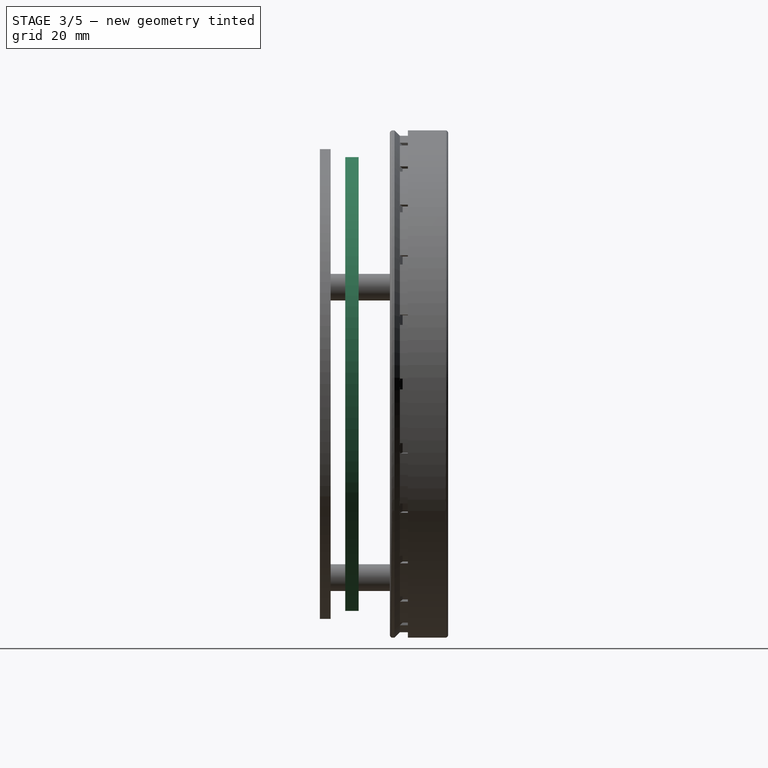
[diagram: stage 3 of 5 — right view after this stage's code; geometry added in this stage tinted green]
FEATURE [PartDesign::Pad] Pad002  label="inner"
  BaseFeature = -> PolarPattern
  Direction = (0,-1,-2e-16)
  Length = 5
  Length2 = 10
  Placement = pos=(0,0,0) rot=(1,0,0;1.5708rad)
  Profile = -> Sketch001
  ReferenceAxis = -> Sketch001 [N_Axis]
  Type = 0
FEATURE [Sketcher::SketchObject] Sketch014  label="tire_profile001"
  FullyConstrained = true
  MapMode = 5
  Placement = pos=(0,0,0) rot=(0.57735,0.57735,0.57735;2.0944rad)
  Support = -> [YZ_Plane007]
  sketch-geometry (5):
    g0: LineSegment StartX=7 StartY=87.2 StartZ=0 EndX=7 EndY=87 EndZ=0
    g1: LineSegment StartX=7 StartY=87 StartZ=0 EndX=9 EndY=85 EndZ=0
    g2: LineSegment StartX=9 StartY=85 StartZ=0 EndX=12 EndY=85 EndZ=0
    g3: LineSegment StartX=12 StartY=85 StartZ=0 EndX=12 EndY=87.2 EndZ=0
    g4: LineSegment StartX=12 StartY=87.2 StartZ=0 EndX=7 EndY=87.2 EndZ=0
  constraints (15):
    c: Coincident(g0,g1)
    c: Coincident(g1,g2)
    c: Horizontal(g2)
    c: Coincident(g2,g3)
    c: Vertical(g3)
    c: Coincident(g3,g4)
    c: Coincident(g4,g0)
    c: Horizontal(g4)
    c: DistanceX(g0) = 7
    c: DistanceY(g0,g0) = 0.2
    c: Angle(g1) = -0.785398
    c: DistanceX(g0,g1) = 2
    c: DistanceX(g2,g2) = 3
    c: Vertical(g0)
    c: DistanceY(g2) = 85  'Inner_Radius'
FEATURE [PartDesign::Revolution] Revolution003
  Angle = 360
  Axis = (1e-16,1,-1e-16)
  Base = (0,0,0)
  Placement = pos=(0,0,0) rot=(0.57735,0.57735,0.57735;2.0944rad)
  Profile = -> Sketch014
  ReferenceAxis = -> Y_Axis007
FEATURE [Sketcher::SketchObject] Sketch015
  ExternalGeometry = -> [Revolution003]
  FullyConstrained = true
  MapMode = 5
  Placement = pos=(0,0,0) rot=(0.57735,0.57735,0.57735;2.0944rad)
  Support = -> [YZ_Plane007]
  sketch-geometry (4):
    g0: LineSegment StartX=12 StartY=85 StartZ=0 EndX=12 EndY=84 EndZ=0
    g1: LineSegment StartX=12 StartY=84 StartZ=0 EndX=10.1 EndY=84 EndZ=0
    g2: LineSegment StartX=10.1 StartY=84 StartZ=0 EndX=9 EndY=85 EndZ=0
    g3: LineSegment StartX=9 StartY=85 StartZ=0 EndX=12 EndY=85 EndZ=0
  constraints (10):
    c: Coincident(g-3,g0)
    c: Coincident(g0,g1)
    c: Horizontal(g1)
    c: Coincident(g1,g2)
    c: Coincident(g2,g-3)
    c: DistanceX(g2,g1) = 1.1
    c: Vertical(g0)
    c: DistanceY(g0,g0) = 1
    c: Coincident(g3,g2)
    c: Coincident(g3,g0)
FEATURE [PartDesign::Pad] Pad007  label="innergrip001"
  BaseFeature = -> Revolution003
  Direction = (1,-2e-16,3e-16)
  Length = 3.6
  Length2 = 10
  Midplane = true
  Placement = pos=(0,0,0) rot=(0.57735,0.57735,0.57735;2.0944rad)
  Profile = -> Sketch015
  ReferenceAxis = -> Sketch015 [N_Axis]
  Type = 0
FEATURE [PartDesign::PolarPattern] PolarPattern006
  Angle = 360
  Axis = -> Y_Axis007
  BaseFeature = -> Pad007
  Occurrences = 24
  Originals = -> [Pad007]
  Overlap = 0
  Placement = pos=(0,0,0) rot=(0.57735,0.57735,0.57735;2.0944rad)
FEATURE [Sketcher::SketchObject] Sketch016
  AttachmentOffset = pos=(0,0,0) rot=(1,0,0;0.06545rad)
  ExternalGeometry = -> [PolarPattern006]
  FullyConstrained = true
  MapMode = 5
  Placement = pos=(0,0,0) rot=(0.58954,0.58954,0.552164;2.13259rad)
  Support = -> [YZ_Plane007]
  expr: Constraints[9] = <<tire_profile001>>.Constraints.Inner_Radius + 2.1mm
  sketch-geometry (4):
    g0: LineSegment StartX=12 StartY=87.1 StartZ=0 EndX=12 EndY=87.7 EndZ=0
    g1: LineSegment StartX=12 StartY=87.7 StartZ=0 EndX=7 EndY=87.7 EndZ=0
    g2: LineSegment StartX=7 StartY=87.7 StartZ=0 EndX=7 EndY=87.1 EndZ=0
    g3: LineSegment StartX=7 StartY=87.1 StartZ=0 EndX=12 EndY=87.1 EndZ=0
  constraints (12):
    c: Vertical(g0)
    c: Coincident(g0,g1)
    c: Horizontal(g1)
    c: Coincident(g1,g2)
    c: Vertical(g2)
    c: DistanceY(g0,g0) = 0.6
    c: Coincident(g3,g2)
    c: PointOnObject(g-3,g2)
    c: PointOnObject(g-3,g0)
    c: DistanceY(g0) = 87.1
    c: Horizontal(g2,g0)
    c: Coincident(g3,g0)
FEATURE [PartDesign::Pad] Pad008
  BaseFeature = -> PolarPattern006
  Direction = (0.997859,-3e-16,-0.0654031)
  Length = 2
  Length2 = 10
  Midplane = true
  Placement = pos=(0,0,0) rot=(0.57735,0.57735,0.57735;2.0944rad)
  Profile = -> Sketch016
  ReferenceAxis = -> Sketch016 [N_Axis]
  Type = 0
FEATURE [PartDesign::PolarPattern] PolarPattern007
  Angle = 360
  Axis = -> Y_Axis007
  BaseFeature = -> Pad008
  Occurrences = 48
  Originals = -> [Pad008]
  Overlap = 0
  Placement = pos=(0,0,0) rot=(0.57735,0.57735,0.57735;2.0944rad)
FEATURE [PartDesign::Body] Body007  label="Rubber_tire_i85mm"
  Group = -> [Sketch014,Revolution003,Sketch015,Pad007,PolarPattern006,Sketch016,Pad008,PolarPattern007]
  Origin = -> Origin007
  Placement = pos=(0,30,0) rot=(0,0,1;0rad)
  Tip = -> PolarPattern007
FEATURE [PartDesign::LinearPattern] LinearPattern
  BaseFeature = -> Pad002
  Direction = -> Sketch001 [N_Axis]
  Length = 17
  Occurrences = 2
  Originals = -> [Pad002]
  Overlap = 0
  Placement = pos=(0,0,0) rot=(1,0,0;1.5708rad)
  Reversed = true
FEATURE [PartDesign::Mirrored] Mirrored
  BaseFeature = -> LinearPattern
  MirrorPlane = -> XZ_Plane
  Originals = -> [Pad]
  Overlap = 0
  Placement = pos=(0,0,0) rot=(1,0,0;1.5708rad)
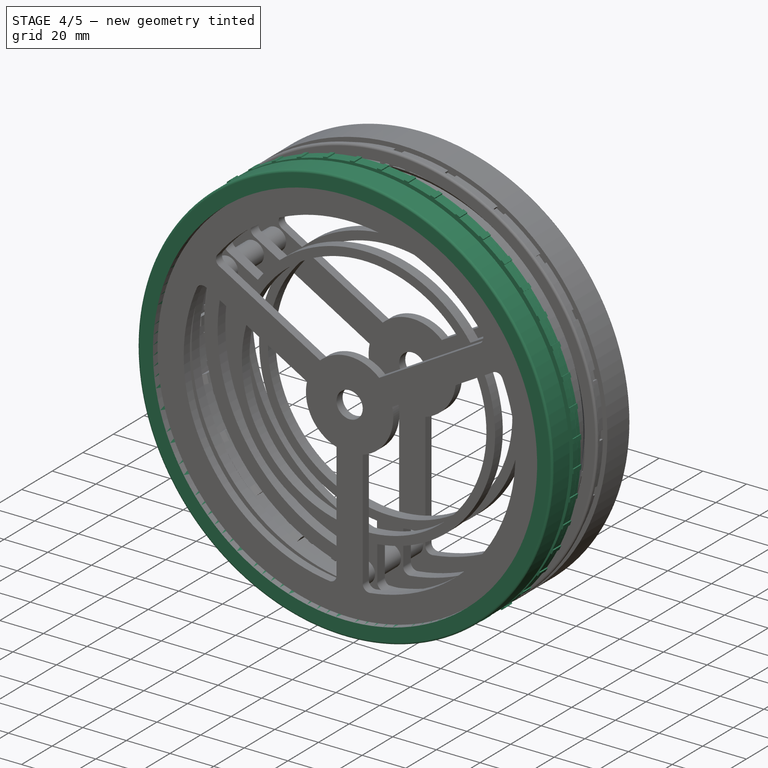
[diagram: stage 4 of 5 — iso view after this stage's code; geometry added in this stage tinted green]
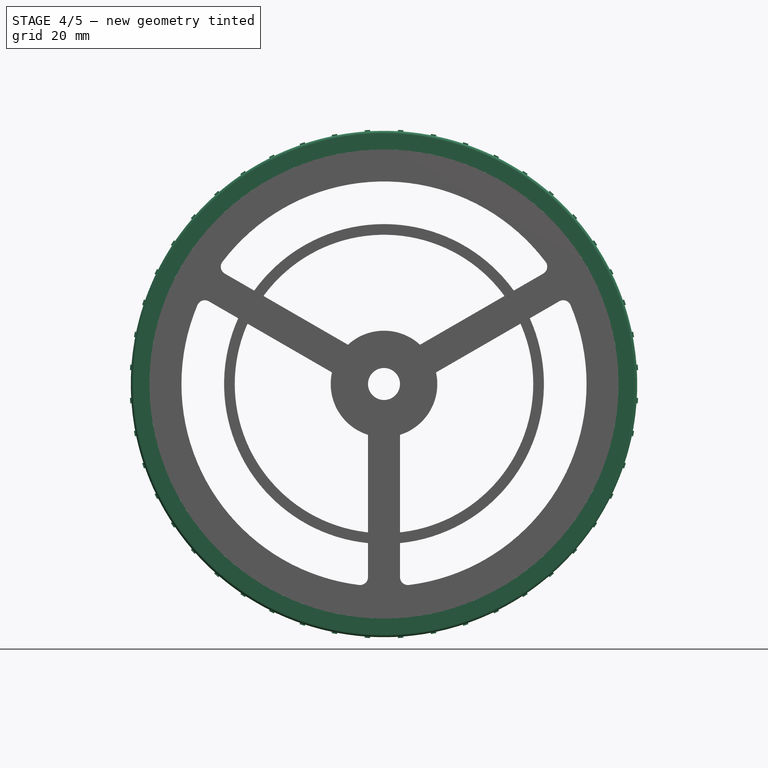
[diagram: stage 4 of 5 — front view after this stage's code; geometry added in this stage tinted green]
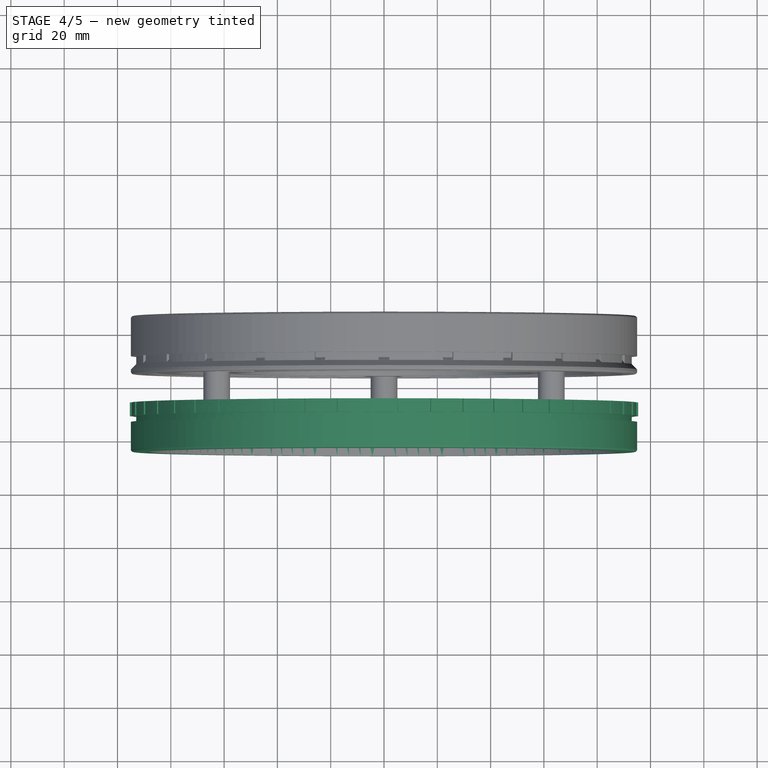
[diagram: stage 4 of 5 — top view after this stage's code; geometry added in this stage tinted green]
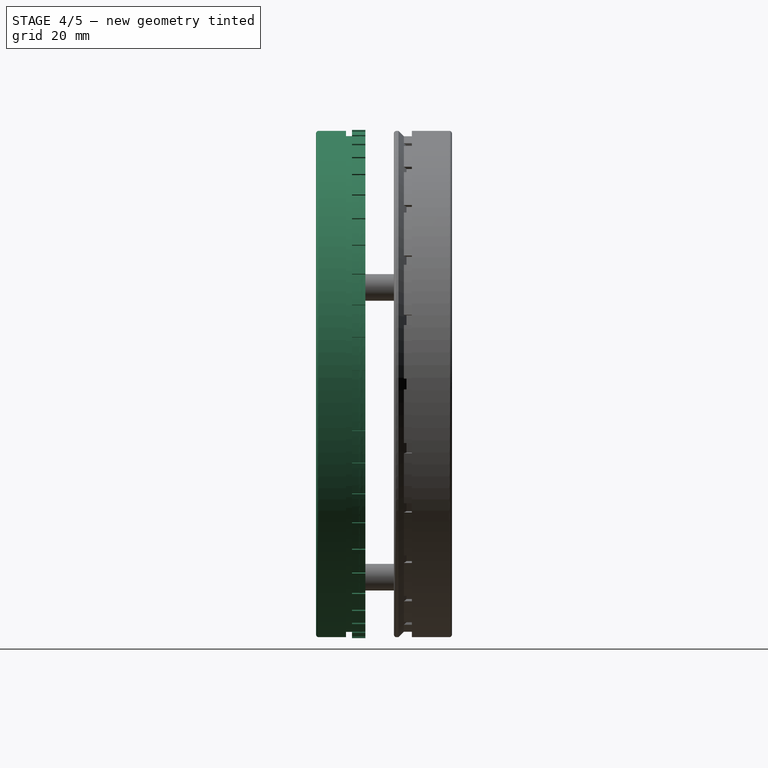
[diagram: stage 4 of 5 — right view after this stage's code; geometry added in this stage tinted green]
FEATURE [PartDesign::Body] Body003  label="Inner_Rim"
  Group = -> [Sketch005,Revolution,Sketch006,Pocket,PolarPattern001,Sketch007,Pocket001,PolarPattern002,Sketch008,Pocket002]
  Origin = -> Origin003
  Tip = -> Pocket002
FEATURE [Sketcher::SketchObject] Sketch009
  FullyConstrained = true
  MapMode = 5
  Placement = pos=(0,0,0) rot=(0.57735,0.57735,0.57735;2.0944rad)
  Support = -> [YZ_Plane004]
  sketch-geometry (12):
    g0: LineSegment StartX=-25.5 StartY=-88 StartZ=0 EndX=-25.5 EndY=-94 EndZ=0
    g1: LineSegment StartX=-24.5 StartY=-95 StartZ=0 EndX=-14.25 EndY=-95 EndZ=0
    g2: LineSegment StartX=-14.25 StartY=-95 StartZ=0 EndX=-14.25 EndY=-93 EndZ=0
    g3: LineSegment StartX=-14.25 StartY=-93 StartZ=0 EndX=-11.25 EndY=-93 EndZ=0
    g4: LineSegment StartX=-9.25 StartY=-95 StartZ=0 EndX=-8.5 EndY=-95 EndZ=0
    g5: LineSegment StartX=-7.5 StartY=-94 StartZ=0 EndX=-7.5 EndY=-88 EndZ=0
    g6: LineSegment StartX=-7.5 StartY=-88 StartZ=0 EndX=-25.5 EndY=-88 EndZ=0
    g7: ArcOfCircle CenterX=-8.5 CenterY=-94 CenterZ=0 NormalX=0 NormalY=0 NormalZ=1 AngleXU=0 Radius=1 StartAngle=4.71239 EndAngle=6.28319
    g8: GeomPoint X=-7.5 Y=-95 Z=0
    g9: ArcOfCircle CenterX=-24.5 CenterY=-94 CenterZ=0 NormalX=0 NormalY=0 NormalZ=1 AngleXU=0 Radius=1 StartAngle=3.14159 EndAngle=4.71239
    g10: GeomPoint X=-25.5 Y=-95 Z=0
    g11: LineSegment StartX=-9.25 StartY=-95 StartZ=0 EndX=-11.25 EndY=-93 EndZ=0
  constraints (32):
    c: Vertical(g0)
    c: Horizontal(g1)
    c: Coincident(g1,g2)
    c: Coincident(g2,g3)
    c: Horizontal(g4)
    c: Vertical(g5)
    c: Coincident(g5,g6)
    c: Coincident(g6,g0)
    c: Horizontal(g6)
    c: PointOnObject(g8,g4)
    c: PointOnObject(g8,g5)
    c: Tangent(g4,g7) = -1.5708
    c: Tangent(g5,g7) = -1.5708
    c: Diameter(g7) = 2
    c: DistanceX(g5) = -7.5  'CenterDistance'
    c: DistanceY(g5) = -88
    c: Horizontal(g3)
    c: DistanceX(g3,g3) = 3
    c: DistanceY(g8) = -95
    c: PointOnObject(g10,g0)
    c: PointOnObject(g10,g1)
    c: Tangent(g0,g9) = -1.5708
    c: Tangent(g1,g9) = -1.5708
    c: Equal(g9,g7)
    c: Horizontal(g4,g1)
    c: Coincident(g11,g4)
    c: Coincident(g3,g11)
    c: Angle(g11) = 2.35619
    c: Vertical(g2)
    c: DistanceX(g3,g4) = 2
    c: DistanceX(g4,g5) = 1.75
    c: DistanceX(g6,g6) = 18
FEATURE [PartDesign::Revolution] Revolution001
  Angle = 360
  Axis = (1e-16,1,-1e-16)
  Base = (0,0,0)
  Placement = pos=(0,0,0) rot=(0.57735,0.57735,0.57735;2.0944rad)
  Profile = -> Sketch009
  ReferenceAxis = -> Y_Axis004
  Reversed = true
FEATURE [PartDesign::Body] Body004  label="Rim"
  Group = -> [Sketch009,Revolution001,Sketch010,Pocket003,PolarPattern003]
  Origin = -> Origin004
  Tip = -> PolarPattern003
FEATURE [Sketcher::SketchObject] Sketch011  label="tire_profile"
  FullyConstrained = true
  MapMode = 5
  Placement = pos=(0,0,0) rot=(0.57735,0.57735,0.57735;2.0944rad)
  Support = -> [YZ_Plane006]
  sketch-geometry (5):
    g0: LineSegment StartX=7 StartY=92.2 StartZ=0 EndX=7 EndY=92 EndZ=0
    g1: LineSegment StartX=7 StartY=92 StartZ=0 EndX=9 EndY=90 EndZ=0
    g2: LineSegment StartX=9 StartY=90 StartZ=0 EndX=12 EndY=90 EndZ=0
    g3: LineSegment StartX=12 StartY=90 StartZ=0 EndX=12 EndY=92.2 EndZ=0
    g4: LineSegment StartX=12 StartY=92.2 StartZ=0 EndX=7 EndY=92.2 EndZ=0
  constraints (15):
    c: Coincident(g0,g1)
    c: Coincident(g1,g2)
    c: Horizontal(g2)
    c: Coincident(g2,g3)
    c: Vertical(g3)
    c: Coincident(g3,g4)
    c: Coincident(g4,g0)
    c: Horizontal(g4)
    c: DistanceX(g0) = 7
    c: DistanceY(g0,g0) = 0.2
    c: Angle(g1) = -0.785398
    c: DistanceX(g0,g1) = 2
    c: DistanceX(g2,g2) = 3
    c: Vertical(g0)
    c: DistanceY(g2) = 90  'Inner_Radius'
FEATURE [PartDesign::Revolution] Revolution002
  Angle = 360
  Axis = (1e-16,1,-1e-16)
  Base = (0,0,0)
  Placement = pos=(0,0,0) rot=(0.57735,0.57735,0.57735;2.0944rad)
  Profile = -> Sketch011
  ReferenceAxis = -> Y_Axis006
FEATURE [Sketcher::SketchObject] Sketch012
  ExternalGeometry = -> [Revolution002]
  FullyConstrained = true
  MapMode = 5
  Placement = pos=(0,0,0) rot=(0.57735,0.57735,0.57735;2.0944rad)
  Support = -> [YZ_Plane006]
  sketch-geometry (4):
    g0: LineSegment StartX=12 StartY=90 StartZ=0 EndX=12 EndY=89 EndZ=0
    g1: LineSegment StartX=12 StartY=89 StartZ=0 EndX=10.1 EndY=89 EndZ=0
    g2: LineSegment StartX=10.1 StartY=89 StartZ=0 EndX=9 EndY=90 EndZ=0
    g3: LineSegment StartX=9 StartY=90 StartZ=0 EndX=12 EndY=90 EndZ=0
  constraints (10):
    c: Coincident(g-3,g0)
    c: Coincident(g0,g1)
    c: Horizontal(g1)
    c: Coincident(g1,g2)
    c: Coincident(g2,g-3)
    c: DistanceX(g2,g1) = 1.1
    c: Vertical(g0)
    c: DistanceY(g0,g0) = 1
    c: Coincident(g3,g2)
    c: Coincident(g3,g0)
FEATURE [PartDesign::Pad] Pad005  label="innergrip"
  BaseFeature = -> Revolution002
  Direction = (1,-2e-16,3e-16)
  Length = 3.6
  Length2 = 10
  Midplane = true
  Placement = pos=(0,0,0) rot=(0.57735,0.57735,0.57735;2.0944rad)
  Profile = -> Sketch012
  ReferenceAxis = -> Sketch012 [N_Axis]
  Type = 0
FEATURE [PartDesign::PolarPattern] PolarPattern004
  Angle = 360
  Axis = -> Y_Axis006
  BaseFeature = -> Pad005
  Occurrences = 24
  Originals = -> [Pad005]
  Overlap = 0
  Placement = pos=(0,0,0) rot=(0.57735,0.57735,0.57735;2.0944rad)
FEATURE [Sketcher::SketchObject] Sketch013
  AttachmentOffset = pos=(0,0,0) rot=(1,0,0;0.06545rad)
  ExternalGeometry = -> [PolarPattern004]
  FullyConstrained = true
  MapMode = 5
  Placement = pos=(0,0,0) rot=(0.58954,0.58954,0.552164;2.13259rad)
  Support = -> [YZ_Plane006]
  expr: Constraints[9] = <<tire_profile>>.Constraints.Inner_Radius + 2.1mm
  sketch-geometry (4):
    g0: LineSegment StartX=12 StartY=92.1 StartZ=0 EndX=12 EndY=92.7 EndZ=0
    g1: LineSegment StartX=12 StartY=92.7 StartZ=0 EndX=7 EndY=92.7 EndZ=0
    g2: LineSegment StartX=7 StartY=92.7 StartZ=0 EndX=7 EndY=92.1 EndZ=0
    g3: LineSegment StartX=7 StartY=92.1 StartZ=0 EndX=12 EndY=92.1 EndZ=0
  constraints (12):
    c: Vertical(g0)
    c: Coincident(g0,g1)
    c: Horizontal(g1)
    c: Coincident(g1,g2)
    c: Vertical(g2)
    c: DistanceY(g0,g0) = 0.6
    c: Coincident(g3,g2)
    c: PointOnObject(g-3,g2)
    c: PointOnObject(g-3,g0)
    c: DistanceY(g0) = 92.1
    c: Horizontal(g2,g0)
    c: Coincident(g3,g0)
FEATURE [PartDesign::Pad] Pad006
  BaseFeature = -> PolarPattern004
  Direction = (0.997859,-3e-16,-0.0654031)
  Length = 2
  Length2 = 10
  Midplane = true
  Placement = pos=(0,0,0) rot=(0.57735,0.57735,0.57735;2.0944rad)
  Profile = -> Sketch013
  ReferenceAxis = -> Sketch013 [N_Axis]
  Type = 0
FEATURE [PartDesign::PolarPattern] PolarPattern005
  Angle = 360
  Axis = -> Y_Axis006
  BaseFeature = -> Pad006
  Occurrences = 48
  Originals = -> [Pad006]
  Overlap = 0
  Placement = pos=(0,0,0) rot=(0.57735,0.57735,0.57735;2.0944rad)
FEATURE [PartDesign::Body] Body006  label="Rubber_tire_i90mm"
  Group = -> [Sketch011,Revolution002,Sketch012,Pad005,PolarPattern004,Sketch013,Pad006,PolarPattern005]
  Origin = -> Origin006
  Placement = pos=(0,30,0) rot=(0,0,1;0rad)
  Tip = -> PolarPattern005
FEATURE [Part::FeaturePython] Clone002  label="Rubber_tire_stretched_copy"  # Draft clone (typed FeaturePython)
  AttacherType = Attacher::AttachEngine3D
  Fuse = false
  Objects = -> [Body006]
  Placement = pos=(0,0,0) rot=(1,0,0;3.14159rad)
  Scale = (1.03,1,1.03)
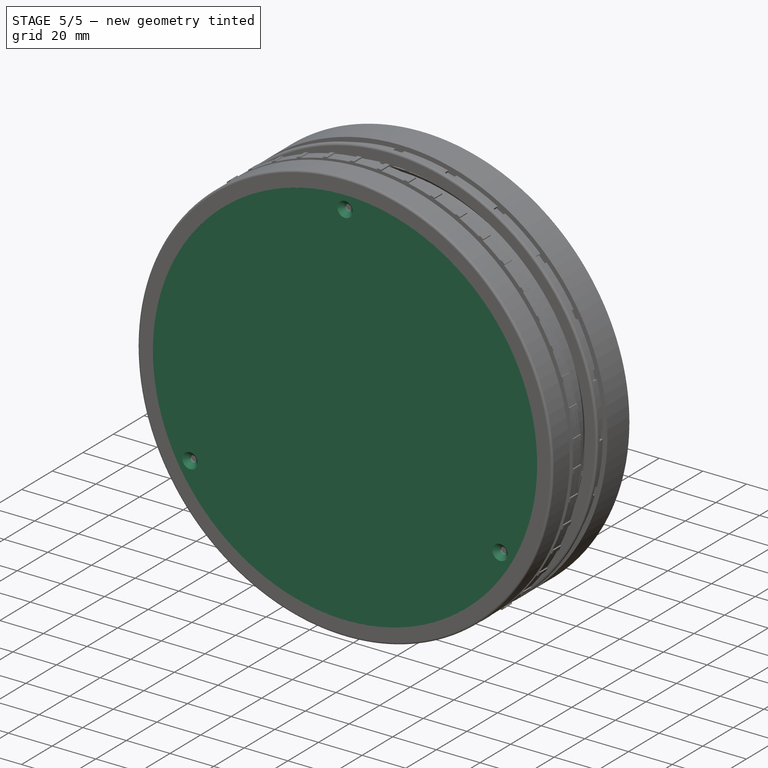
[diagram: stage 5 of 5 — iso view after this stage's code; geometry added in this stage tinted green]
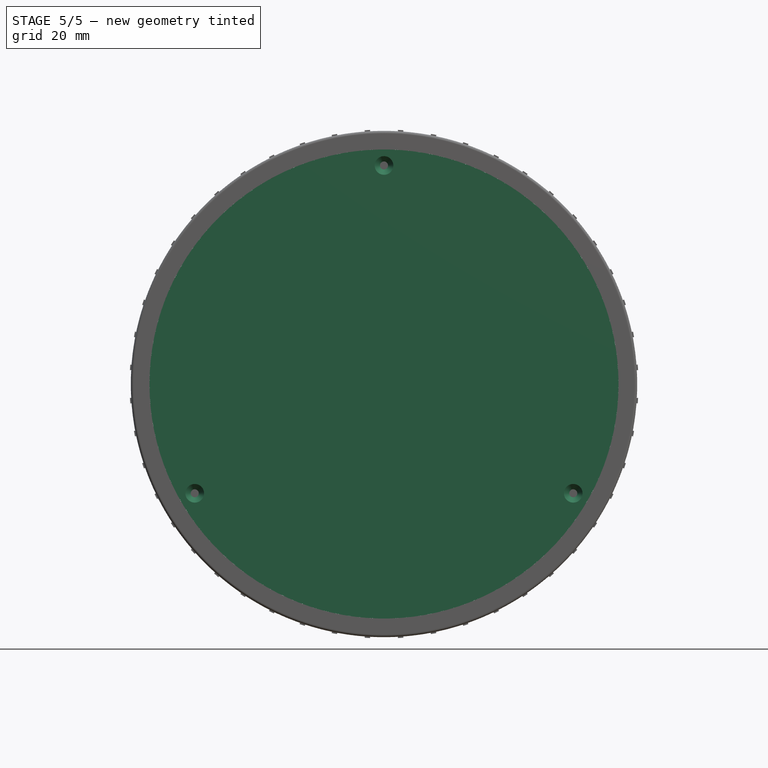
[diagram: stage 5 of 5 — front view after this stage's code; geometry added in this stage tinted green]
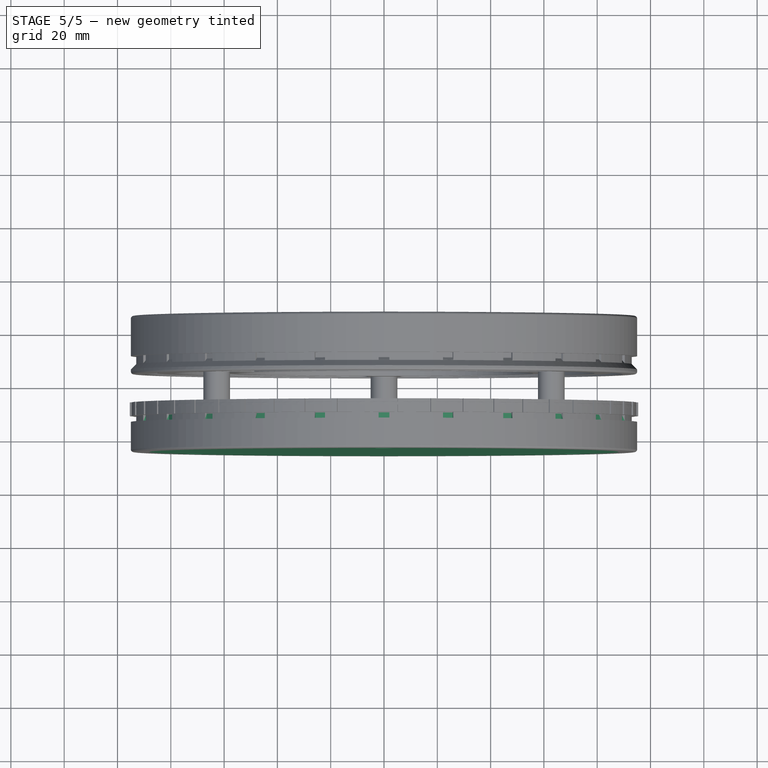
[diagram: stage 5 of 5 — top view after this stage's code; geometry added in this stage tinted green]
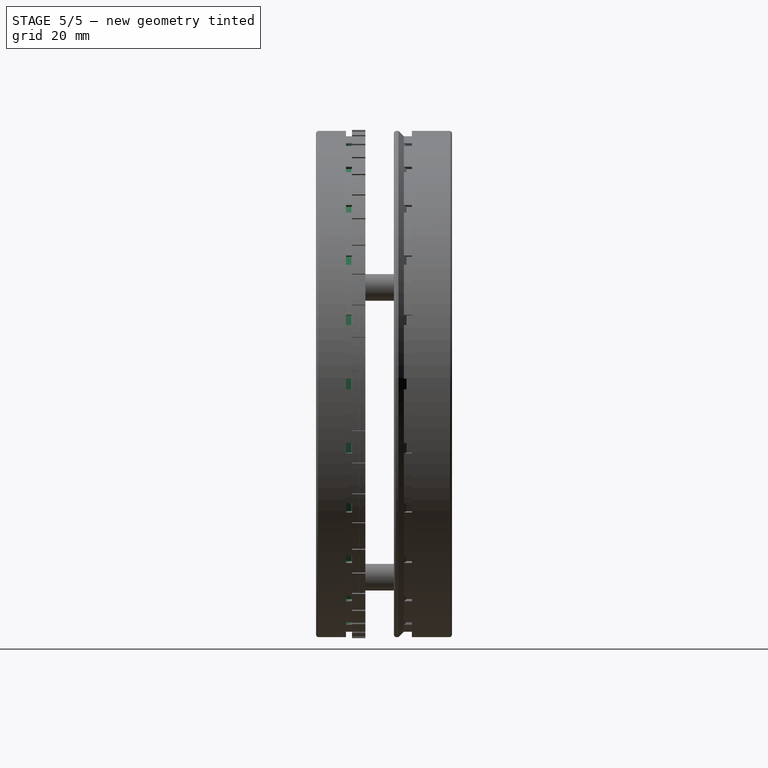
[diagram: stage 5 of 5 — right view after this stage's code; geometry added in this stage tinted green]
FEATURE [Sketcher::SketchObject] Sketch003
  AttachmentOffset = pos=(0,0,22.5) rot=(0,0,1;0rad)
  FullyConstrained = true
  MapMode = 5
  Placement = pos=(0,-22.5,-5e-15) rot=(1,0,0;1.5708rad)
  Support = -> [XZ_Plane001]
  sketch-geometry (6):
    g0: Circle CenterX=0 CenterY=7.1e-15 CenterZ=0 NormalX=0 NormalY=0 NormalZ=1 AngleXU=0 Radius=88
    g1: Circle CenterX=0 CenterY=82 CenterZ=0 NormalX=0 NormalY=0 NormalZ=1 AngleXU=0 Radius=1.5
    g2: Circle CenterX=71.0141 CenterY=-41 CenterZ=0 NormalX=0 NormalY=0 NormalZ=1 AngleXU=0 Radius=1.5
    g3: Circle CenterX=-71.0141 CenterY=-41 CenterZ=0 NormalX=0 NormalY=0 NormalZ=1 AngleXU=0 Radius=1.5
    g4: LineSegment StartX=-71.0141 StartY=-41 StartZ=0 EndX=0 EndY=7.1e-15 EndZ=0
    g5: LineSegment StartX=0 StartY=7.1e-15 StartZ=0 EndX=0 EndY=82 EndZ=0
  constraints (14):
    c: Coincident(g0,g-1)
    c: Diameter(g0) = 176
    c: PointOnObject(g1,g-2)
    c: DistanceY(g1) = 82
    c: Diameter(g1) = 3
    c: Coincident(g4,g3)
    c: Coincident(g0,g4)
    c: Angle(g4) = 0.523599
    c: Symmetric(g2,g3,g-2)
    c: Equal(g1,g3)
    c: Equal(g3,g2)
    c: Coincident(g5,g0)
    c: Coincident(g5,g1)
    c: Equal(g5,g4)
FEATURE [PartDesign::Pad] Pad003
  Direction = (0,-1,-2e-16)
  Length = 3
  Length2 = 10
  Placement = pos=(0,0,0) rot=(1,0,0;1.5708rad)
  Profile = -> Sketch003
  ReferenceAxis = -> Sketch003 [N_Axis]
  Type = 0
FEATURE [Sketcher::SketchObject] Sketch004
  AttachmentOffset = pos=(0,0,-22.5) rot=(0,0,1;0rad)
  FullyConstrained = true
  MapMode = 5
  Placement = pos=(0,22.5,5e-15) rot=(1,0,0;1.5708rad)
  Support = -> [XZ_Plane002]
  sketch-geometry (7):
    g0: Circle CenterX=0 CenterY=0 CenterZ=0 NormalX=0 NormalY=0 NormalZ=1 AngleXU=0 Radius=88
    g1: Circle CenterX=0 CenterY=82 CenterZ=0 NormalX=0 NormalY=0 NormalZ=1 AngleXU=0 Radius=1.5
    g2: Circle CenterX=71.0141 CenterY=-41 CenterZ=0 NormalX=0 NormalY=0 NormalZ=1 AngleXU=0 Radius=1.5
    g3: Circle CenterX=-71.0141 CenterY=-41 CenterZ=0 NormalX=0 NormalY=0 NormalZ=1 AngleXU=0 Radius=1.5
    g4: LineSegment StartX=-71.0141 StartY=-41 StartZ=0 EndX=0 EndY=0 EndZ=0
    g5: LineSegment StartX=0 StartY=0 StartZ=0 EndX=0 EndY=82 EndZ=0
    g6: Circle CenterX=0 CenterY=0 CenterZ=0 NormalX=0 NormalY=0 NormalZ=1 AngleXU=0 Radius=12
  constraints (16):
    c: Coincident(g0,g-1)
    c: Diameter(g0) = 176
    c: PointOnObject(g1,g-2)
    c: DistanceY(g1) = 82
    c: Diameter(g1) = 3
    c: Coincident(g4,g3)
    c: Coincident(g0,g4)
    c: Angle(g4) = 0.523599
    c: Symmetric(g2,g3,g-2)
    c: Equal(g1,g3)
    c: Equal(g3,g2)
    c: Coincident(g5,g0)
    c: Coincident(g5,g1)
    c: Equal(g5,g4)
    c: Coincident(g6,g0)
    c: Diameter(g6) = 24
FEATURE [PartDesign::Pad] Pad004
  Direction = (0,-1,-2e-16)
  Length = 3
  Length2 = 10
  Placement = pos=(0,0,0) rot=(1,0,0;1.5708rad)
  Profile = -> Sketch004
  ReferenceAxis = -> Sketch004 [N_Axis]
  Reversed = true
  Type = 0
FEATURE [PartDesign::Chamfer] Chamfer
  Angle = 45
  Base = -> Pad003 [Edge6,Edge9,Edge12]
  BaseFeature = -> Pad003
  ChamferType = 0
  FlipDirection = false
  Placement = pos=(0,0,0) rot=(1,0,0;1.5708rad)
  Size = 2
  Size2 = 1
  SupportTransform = false
  UseAllEdges = false
FEATURE [PartDesign::Body] Body001  label="Cover"
  Group = -> [Sketch003,Pad003,Chamfer]
  Origin = -> Origin001
  Tip = -> Chamfer
FEATURE [PartDesign::Chamfer] Chamfer001
  Angle = 45
  Base = -> Pad004 [Edge9,Edge12,Edge15]
  BaseFeature = -> Pad004
  ChamferType = 0
  FlipDirection = false
  Placement = pos=(0,0,0) rot=(1,0,0;1.5708rad)
  Size = 2
  Size2 = 1
  SupportTransform = false
  UseAllEdges = false
FEATURE [Sketcher::SketchObject] Sketch010
  FullyConstrained = true
  MapMode = 5
  Placement = pos=(0,0,0) rot=(0.57735,0.57735,0.57735;2.0944rad)
  Support = -> [YZ_Plane004]
  expr: Constraints[13] = -3.76mm + <<Sketch009>>.Constraints.CenterDistance
  sketch-geometry (5):
    g0: LineSegment StartX=-14.24 StartY=-95 StartZ=0 EndX=-14.24 EndY=-92 EndZ=0
    g1: LineSegment StartX=-14.24 StartY=-92 StartZ=0 EndX=-12.26 EndY=-92 EndZ=0
    g2: LineSegment StartX=-12.26 StartY=-92 StartZ=0 EndX=-11.26 EndY=-93 EndZ=0
    g3: LineSegment StartX=-11.26 StartY=-93 StartZ=0 EndX=-11.26 EndY=-95 EndZ=0
    g4: LineSegment StartX=-11.26 StartY=-95 StartZ=0 EndX=-14.24 EndY=-95 EndZ=0
  constraints (15):
    c: Vertical(g0)
    c: Coincident(g0,g1)
    c: Horizontal(g1)
    c: Coincident(g1,g2)
    c: Coincident(g2,g3)
    c: Vertical(g3)
    c: Coincident(g3,g4)
    c: Coincident(g4,g0)
    c: Horizontal(g4)
    c: DistanceX(g4,g4) = 2.98
    c: DistanceY(g0,g0) = 3
    c: DistanceY(g3,g3) = 2
    c: Angle(g2) = -0.785398
    c: DistanceX(g3) = -11.26
    c: DistanceY(g3) = -95
FEATURE [PartDesign::Pocket] Pocket003
  BaseFeature = -> Revolution001
  Direction = (-1,2e-16,-3e-16)
  Length = 4
  Length2 = 5
  Midplane = true
  Placement = pos=(0,0,0) rot=(0.57735,0.57735,0.57735;2.0944rad)
  Profile = -> Sketch010
  ReferenceAxis = -> Sketch010 [N_Axis]
  Type = 0
FEATURE [PartDesign::PolarPattern] PolarPattern003
  Angle = 360
  Axis = -> Y_Axis004
  BaseFeature = -> Pocket003
  Occurrences = 24
  Originals = -> [Pocket003]
  Overlap = 0
  Placement = pos=(0,0,0) rot=(0.57735,0.57735,0.57735;2.0944rad)
FEATURE [PartDesign::Body] Body005
  BaseFeature = -> Body003
  Group = -> [Clone]
  Origin = -> Origin005
  Tip = -> Clone
FEATURE [Part::Cut] Cut  label="Outer_Rim_Narrow"
  Base = -> Body004
  Tool = -> Body005
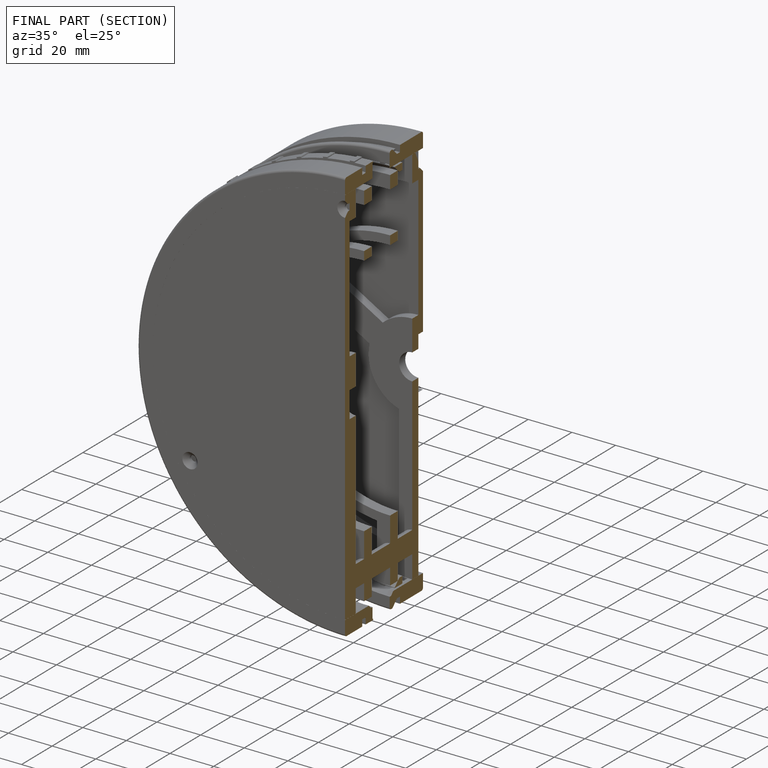
[diagram: finished part — half-section view (interior)]
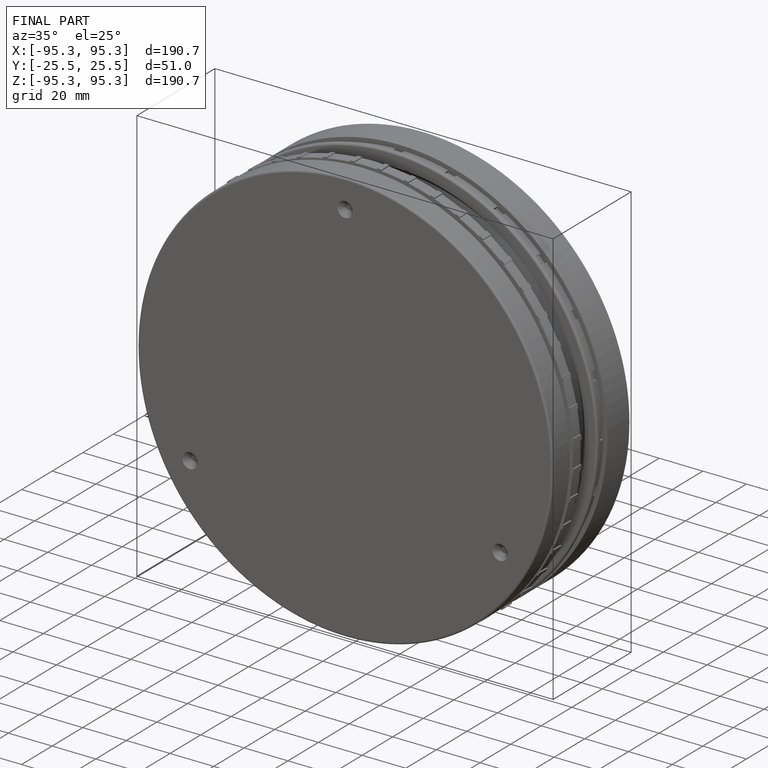
[diagram: finished part — iso view with bounding-box wireframe]
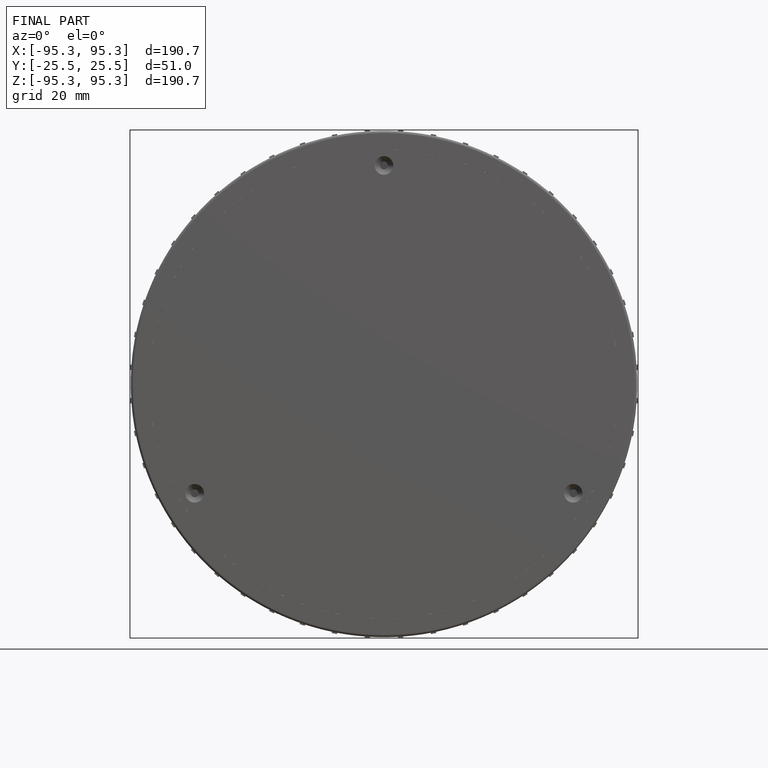
[diagram: finished part — front view with bounding-box wireframe]
